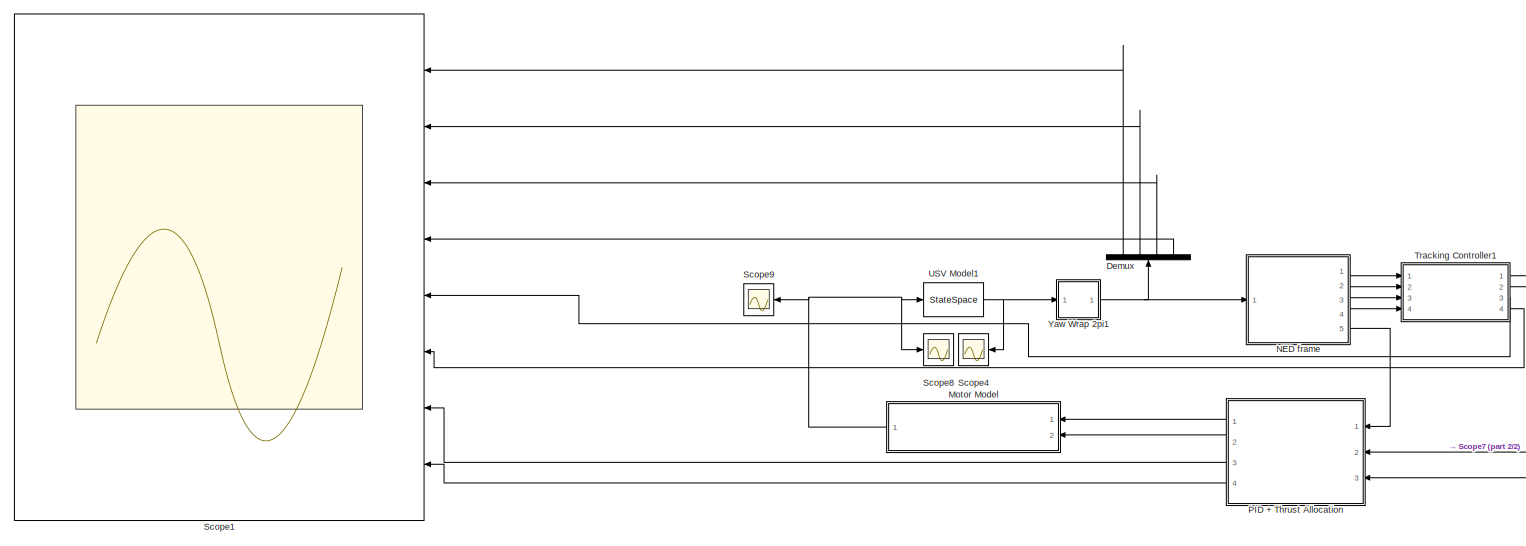
[diagram: root canvas - part 1/2, most of the canvas]
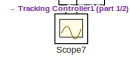
[diagram: root canvas - part 2/2, bottom right region]
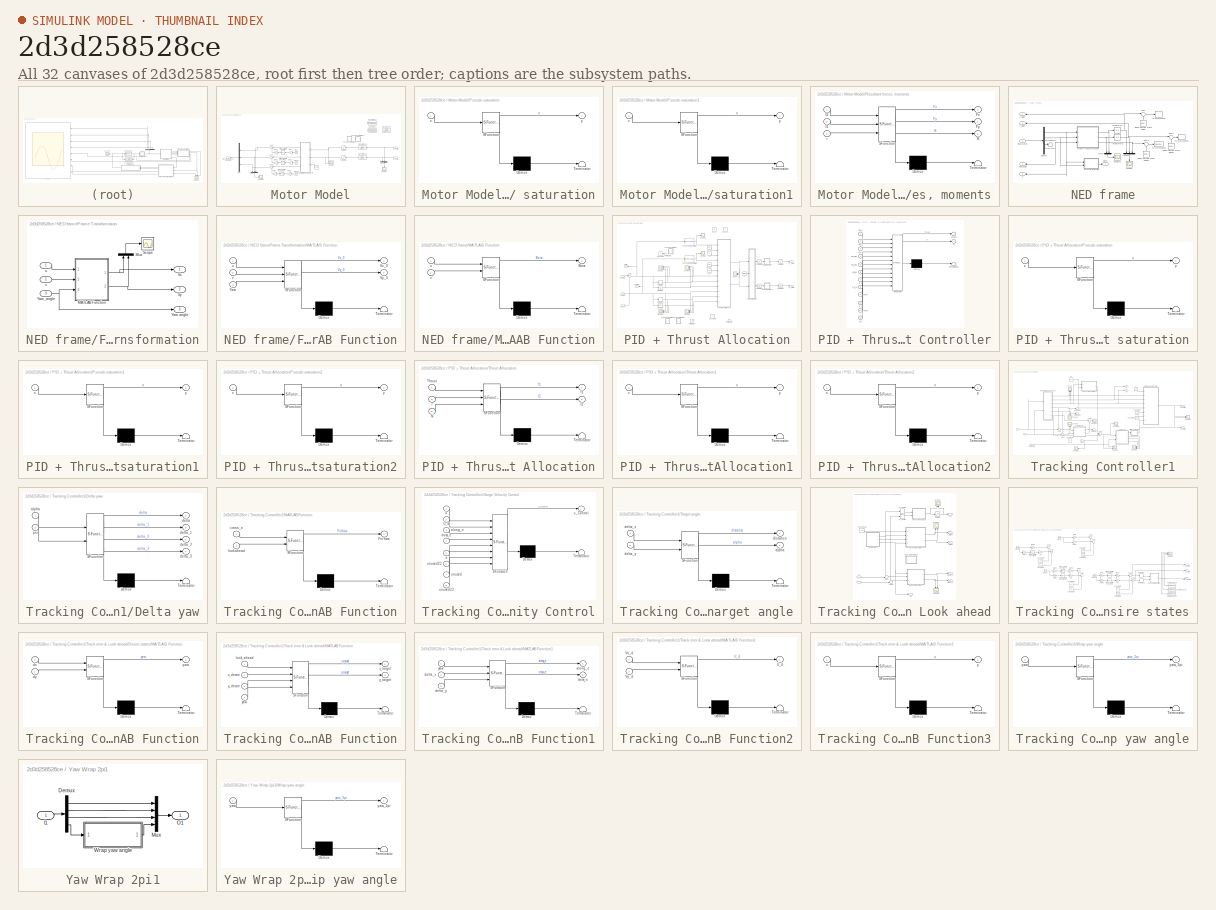
[diagram: thumbnail index - all 32 canvases of the model, root first then tree order]
MODEL slx_2d3d258528ce
KIND model
CONFIG AbsTol = auto
CONFIG EnableMultiTasking = off
CONFIG FixedStep = 1e-2
CONFIG MaxStep = auto
CONFIG MinStep = auto
CONFIG RelTol = 1e-2
CONFIG SampleTimeConstraint = Unconstrained
CONFIG Solver = FixedStepAuto
CONFIG SolverName = FixedStepAuto
CONFIG StartTime = 0.0
CONFIG StopTime = 400
BLOCK [Demux] Demux
  DisplayOption = bar
  Ports = [1, 4]
BLOCK [SubSystem] Motor Model
  Ports = [2, 1]
  RequestExecContextInheritance = off
BLOCK [Clock] Motor Model/Clock
BLOCK [Clock] Motor Model/Clock1
BLOCK [Clock] Motor Model/Clock2
BLOCK [Gain] Motor Model/Gain
  Gain = 0.2
  OutDataTypeStr = Inherit: Inherit via internal rule
  ParamDataTypeStr = Inherit: Inherit via internal rule
  SaturateOnIntegerOverflow = off
BLOCK [Gain] Motor Model/Gain1
  Gain = 0.5
  OutDataTypeStr = Inherit: Inherit via internal rule
  ParamDataTypeStr = Inherit: Inherit via internal rule
  SaturateOnIntegerOverflow = off
BLOCK [Gain] Motor Model/Gain2
  Gain = 0.2
  OutDataTypeStr = Inherit: Inherit via internal rule
  ParamDataTypeStr = Inherit: Inherit via internal rule
  SaturateOnIntegerOverflow = off
BLOCK [Gain] Motor Model/Gain3
  Gain = 0.5
  OutDataTypeStr = Inherit: Inherit via internal rule
  ParamDataTypeStr = Inherit: Inherit via internal rule
  SaturateOnIntegerOverflow = off
BLOCK [Gain] Motor Model/Gain4
  Gain = 0.2
  OutDataTypeStr = Inherit: Inherit via internal rule
  ParamDataTypeStr = Inherit: Inherit via internal rule
  SaturateOnIntegerOverflow = off
BLOCK [Gain] Motor Model/Gain5
  Gain = 0.02
  OutDataTypeStr = Inherit: Inherit via internal rule
  ParamDataTypeStr = Inherit: Inherit via internal rule
  SaturateOnIntegerOverflow = off
BLOCK [Mux] Motor Model/Mux
  DisplayOption = bar
  Inputs = 3
  Ports = [3, 1]
BLOCK [Mux] Motor Model/Mux2
  DisplayOption = bar
  Inputs = 2
  Ports = [2, 1]
BLOCK [Mux] Motor Model/Mux3
  DisplayOption = bar
  Inputs = 3
  Ports = [3, 1]
BLOCK [SubSystem] Motor Model/Pseudo saturation
  ErrorFcn = Stateflow.Translate.translate
  PermitHierarchicalResolution = ExplicitOnly
  Ports = [1, 1]
  RequestExecContextInheritance = off
  SFBlockType = MATLAB Function
  TreatAsAtomicUnit = on
BLOCK [Demux] Motor Model/Pseudo saturation/ Demux 
  Outputs = 1
  Ports = [1, 1]
BLOCK [S-Function] Motor Model/Pseudo saturation/ SFunction 
  EnableBusSupport = on
  FunctionName = sf_sfun
  PortCounts = [1 2]
  Ports = [1, 2]
  SFcnIsStateOwnerBlock = off
  SFunctionDeploymentMode = off
  Tag = Stateflow S-Function USV1_Trajectory_Tracking_PID_Fuzzy4_BachelorThesis 14
BLOCK [Terminator] Motor Model/Pseudo saturation/ Terminator 
BLOCK [Inport] Motor Model/Pseudo saturation/x
  IconDisplay = Port number
BLOCK [Outport] Motor Model/Pseudo saturation/y
  IconDisplay = Port number
BLOCK [SubSystem] Motor Model/Pseudo saturation1
  ErrorFcn = Stateflow.Translate.translate
  PermitHierarchicalResolution = ExplicitOnly
  Ports = [1, 1]
  RequestExecContextInheritance = off
  SFBlockType = MATLAB Function
  TreatAsAtomicUnit = on
BLOCK [Demux] Motor Model/Pseudo saturation1/ Demux 
  Outputs = 1
  Ports = [1, 1]
BLOCK [S-Function] Motor Model/Pseudo saturation1/ SFunction 
  EnableBusSupport = on
  FunctionName = sf_sfun
  PortCounts = [1 2]
  Ports = [1, 2]
  SFcnIsStateOwnerBlock = off
  SFunctionDeploymentMode = off
  Tag = Stateflow S-Function USV1_Trajectory_Tracking_PID_Fuzzy4_BachelorThesis 3
BLOCK [Terminator] Motor Model/Pseudo saturation1/ Terminator 
BLOCK [Inport] Motor Model/Pseudo saturation1/x
  IconDisplay = Port number
BLOCK [Outport] Motor Model/Pseudo saturation1/y
  IconDisplay = Port number
BLOCK [Outport] Motor Model/Resultant Forces, moments
  IconDisplay = Port number
BLOCK [SubSystem] Motor Model/Resultant forces, moments
  ErrorFcn = Stateflow.Translate.translate
  PermitHierarchicalResolution = ExplicitOnly
  Ports = [3, 3]
  RequestExecContextInheritance = off
  SFBlockType = MATLAB Function
  TreatAsAtomicUnit = on
BLOCK [Demux] Motor Model/Resultant forces, moments/ Demux 
  Outputs = 1
  Ports = [1, 1]
BLOCK [S-Function] Motor Model/Resultant forces, moments/ SFunction 
  EnableBusSupport = on
  FunctionName = sf_sfun
  PortCounts = [3 4]
  Ports = [3, 4]
  SFcnIsStateOwnerBlock = off
  SFunctionDeploymentMode = off
  Tag = Stateflow S-Function USV1_Trajectory_Tracking_PID_Fuzzy4_BachelorThesis 41
BLOCK [Terminator] Motor Model/Resultant forces, moments/ Terminator 
BLOCK [Outport] Motor Model/Resultant forces, moments/Fx
  IconDisplay = Port number
BLOCK [Outport] Motor Model/Resultant forces, moments/Fy
  IconDisplay = Port number
  Port = 2
BLOCK [Outport] Motor Model/Resultant forces, moments/N
  IconDisplay = Port number
  Port = 3
BLOCK [Inport] Motor Model/Resultant forces, moments/f1
  IconDisplay = Port number
  Port = 2
BLOCK [Inport] Motor Model/Resultant forces, moments/f2
  IconDisplay = Port number
BLOCK [Inport] Motor Model/Resultant forces, moments/r
  IconDisplay = Port number
  Port = 3
BLOCK [Saturate] Motor Model/Saturation
  InputPortMap = u0
  LowerLimit = 0
  Ports = [1, 1]
  UpperLimit = 150
BLOCK [Saturate] Motor Model/Saturation1
  InputPortMap = u0
  LowerLimit = 0
  Ports = [1, 1]
  UpperLimit = 150
BLOCK [Scope] Motor Model/Scope1
  Floating = off
  NumInputPorts = 2
  Ports = [2]
  ScopeSpecificationString = Simulink.scopes.TimeScopeBlockCfg('CurrentConfiguration', extmgr.ConfigurationSet(extmgr.Configuration('Core','General UI',true,'FigureColor',[1 1 1]),extmgr.Configuration('Core','Source UI',true),extmgr.Configuration('Sources','WiredSimulink',true,'DataLoggingVariableName','ScopeData1'),extmgr.Configuration('Visuals','Time Domain',true,'SerializedDisplays',{struct('MinYLimReal','-5.62037','MaxYLi...<+2387ch>
BLOCK [Scope] Motor Model/Scope2
  Floating = off
  NumInputPorts = 1
  Ports = [1]
  ScopeSpecificationString = Simulink.scopes.TimeScopeBlockCfg('CurrentConfiguration', extmgr.ConfigurationSet(extmgr.Configuration('Core','General UI',true),extmgr.Configuration('Core','Source UI',true),extmgr.Configuration('Sources','WiredSimulink',true,'DataLoggingVariableName','ScopeData1'),extmgr.Configuration('Visuals','Time Domain',true,'SerializedDisplays',{struct('MinYLimReal','-0.28386','MaxYLimReal','2.55478','YLab...<+1593ch>
BLOCK [Scope] Motor Model/Scope3
  Floating = off
  NumInputPorts = 1
  Ports = [1]
  ScopeSpecificationString = Simulink.scopes.TimeScopeBlockCfg('CurrentConfiguration', extmgr.ConfigurationSet(extmgr.Configuration('Core','General UI',true),extmgr.Configuration('Core','Source UI',true),extmgr.Configuration('Sources','WiredSimulink',true,'DataLoggingVariableName','ScopeData2'),extmgr.Configuration('Visuals','Time Domain',true,'SerializedDisplays',{struct('MinYLimReal','-42.3432','MaxYLimReal','86.59551','YLa...<+1572ch>
BLOCK [Sum] Motor Model/Sum
  IconShape = round
  InputSameDT = off
  Inputs = |++
  OutDataTypeStr = Inherit: Inherit via internal rule
  Ports = [2, 1]
  SaturateOnIntegerOverflow = off
BLOCK [Sum] Motor Model/Sum1
  IconShape = round
  InputSameDT = off
  Inputs = |++
  OutDataTypeStr = Inherit: Inherit via internal rule
  Ports = [2, 1]
  SaturateOnIntegerOverflow = off
BLOCK [Sum] Motor Model/Sum2
  IconShape = round
  InputSameDT = off
  Inputs = |++
  OutDataTypeStr = Inherit: Inherit via internal rule
  Ports = [2, 1]
  SaturateOnIntegerOverflow = off
BLOCK [TransferFcn] Motor Model/Transfer Fcn
  Denominator = [1 74.38 5589 42107]
  Numerator = [339.28 -34009 3945100]
BLOCK [TransferFcn] Motor Model/Transfer Fcn1
  Denominator = [1 74.38 5589 42107]
  Numerator = [339.28 -34009 3945100]
BLOCK [TransferFcn] Motor Model/Transfer Fcn2
  Denominator = [0.4 1]
  Numerator = [30]
BLOCK [TransferFcn] Motor Model/Transfer Fcn3
  Denominator = [0.4 1]
  Numerator = [30]
BLOCK [TransferFcn] Motor Model/Transfer Fcn4
  Denominator = [1 8.526]
  Numerator = 800
BLOCK [Trigonometry] Motor Model/Trigonometric Function
  Ports = [1, 1]
BLOCK [Trigonometry] Motor Model/Trigonometric Function1
  Operator = cos
  Ports = [1, 1]
BLOCK [Trigonometry] Motor Model/Trigonometric Function2
  Ports = [1, 1]
BLOCK [Inport] Motor Model/f1_PWM
  IconDisplay = Port number
BLOCK [Inport] Motor Model/f2_PWM
  IconDisplay = Port number
  Port = 2
BLOCK [Constant] Motor Model/r
  Value = 1.83/2
BLOCK [SubSystem] NED frame
  Ports = [1, 5]
  RequestExecContextInheritance = off
BLOCK [Reference] NED frame/Band-Limited White Noise  REF=simulink/Sources/Band-Limited
White Noise
  Ports = [0, 1]
  SourceBlock = simulink/Sources/Band-Limited\nWhite Noise
  SourceProductBaseCode = SL
  SourceProductName = Simulink
  SourceType = Band-Limited White Noise.
BLOCK [Reference] NED frame/Band-Limited White Noise1  REF=simulink/Sources/Band-Limited
White Noise
  Ports = [0, 1]
  SourceBlock = simulink/Sources/Band-Limited\nWhite Noise
  SourceProductBaseCode = SL
  SourceProductName = Simulink
  SourceType = Band-Limited White Noise.
BLOCK [Reference] NED frame/Band-Limited White Noise2  REF=simulink/Sources/Band-Limited
White Noise
  Ports = [0, 1]
  SourceBlock = simulink/Sources/Band-Limited\nWhite Noise
  SourceProductBaseCode = SL
  SourceProductName = Simulink
  SourceType = Band-Limited White Noise.
BLOCK [Outport] NED frame/Beta
  IconDisplay = Port number
  Port = 4
BLOCK [Demux] NED frame/Demux
  DisplayOption = bar
  Ports = [1, 4]
BLOCK [SubSystem] NED frame/Frame Transformation
  Ports = [3, 3]
  RequestExecContextInheritance = off
BLOCK [SubSystem] NED frame/Frame Transformation/MATLAB Function
  ErrorFcn = Stateflow.Translate.translate
  PermitHierarchicalResolution = ExplicitOnly
  Ports = [3, 2]
  RequestExecContextInheritance = off
  SFBlockType = MATLAB Function
  TreatAsAtomicUnit = on
BLOCK [Demux] NED frame/Frame Transformation/MATLAB Function/ Demux 
  Outputs = 1
  Ports = [1, 1]
BLOCK [S-Function] NED frame/Frame Transformation/MATLAB Function/ SFunction 
  EnableBusSupport = on
  FunctionName = sf_sfun
  PortCounts = [3 3]
  Ports = [3, 3]
  SFcnIsStateOwnerBlock = off
  SFunctionDeploymentMode = off
  Tag = Stateflow S-Function USV1_Trajectory_Tracking_PID_Fuzzy4_BachelorThesis 42
BLOCK [Terminator] NED frame/Frame Transformation/MATLAB Function/ Terminator 
BLOCK [Outport] NED frame/Frame Transformation/MATLAB Function/Vx_0
  IconDisplay = Port number
BLOCK [Outport] NED frame/Frame Transformation/MATLAB Function/Vy_0
  IconDisplay = Port number
  Port = 2
BLOCK [Inport] NED frame/Frame Transformation/MATLAB Function/Yaw
  IconDisplay = Port number
  Port = 3
BLOCK [Inport] NED frame/Frame Transformation/MATLAB Function/u
  IconDisplay = Port number
BLOCK [Inport] NED frame/Frame Transformation/MATLAB Function/v
  IconDisplay = Port number
  Port = 2
BLOCK [Mux] NED frame/Frame Transformation/Mux
  DisplayOption = bar
  Inputs = 2
  Ports = [2, 1]
BLOCK [Scope] NED frame/Frame Transformation/Scope
  Floating = off
  NumInputPorts = 1
  Ports = [1]
  ScopeSpecificationString = Simulink.scopes.TimeScopeBlockCfg('CurrentConfiguration', extmgr.ConfigurationSet(extmgr.Configuration('Core','General UI',true),extmgr.Configuration('Core','Source UI',true),extmgr.Configuration('Sources','WiredSimulink',true,'DataLoggingVariableName','ScopeData18'),extmgr.Configuration('Visuals','Time Domain',true,'SerializedDisplays',{struct('MinYLimReal','-1.15615','MaxYLimReal','1.15901','YLa...<+1430ch>
BLOCK [Outport] NED frame/Frame Transformation/Vx
  IconDisplay = Port number
BLOCK [Outport] NED frame/Frame Transformation/Vy
  IconDisplay = Port number
  Port = 2
BLOCK [Outport] NED frame/Frame Transformation/Yaw angle
  IconDisplay = Port number
  Port = 3
BLOCK [Inport] NED frame/Frame Transformation/Yaw_angle
  IconDisplay = Port number
  Port = 3
BLOCK [Inport] NED frame/Frame Transformation/u
  IconDisplay = Port number
BLOCK [Inport] NED frame/Frame Transformation/v
  IconDisplay = Port number
  Port = 2
BLOCK [Integrator] NED frame/Integrator1
  Ports = [1, 1]
BLOCK [Integrator] NED frame/Integrator3
  Ports = [1, 1]
BLOCK [SubSystem] NED frame/MATLAB Function
  ErrorFcn = Stateflow.Translate.translate
  PermitHierarchicalResolution = ExplicitOnly
  Ports = [2, 1]
  RequestExecContextInheritance = off
  SFBlockType = MATLAB Function
  TreatAsAtomicUnit = on
BLOCK [Demux] NED frame/MATLAB Function/ Demux 
  Outputs = 1
  Ports = [1, 1]
BLOCK [S-Function] NED frame/MATLAB Function/ SFunction 
  EnableBusSupport = on
  FunctionName = sf_sfun
  PortCounts = [2 2]
  Ports = [2, 2]
  SFcnIsStateOwnerBlock = off
  SFunctionDeploymentMode = off
  Tag = Stateflow S-Function USV1_Trajectory_Tracking_PID_Fuzzy4_BachelorThesis 57
BLOCK [Terminator] NED frame/MATLAB Function/ Terminator 
BLOCK [Outport] NED frame/MATLAB Function/Beta
  IconDisplay = Port number
BLOCK [Inport] NED frame/MATLAB Function/u
  IconDisplay = Port number
BLOCK [Inport] NED frame/MATLAB Function/v
  IconDisplay = Port number
  Port = 2
BLOCK [Mux] NED frame/Mux3
  DisplayOption = bar
  Inputs = 3
  Ports = [3, 1]
BLOCK [Mux] NED frame/Mux9
  DisplayOption = bar
  Inputs = 2
  Ports = [2, 1]
BLOCK [Inport] NED frame/Real states
  IconDisplay = Port number
BLOCK [Scope] NED frame/Scope12
  Floating = off
  NumInputPorts = 1
  Ports = [1]
  ScopeSpecificationString = Simulink.scopes.TimeScopeBlockCfg('CurrentConfiguration', extmgr.ConfigurationSet(extmgr.Configuration('Core','General UI',true),extmgr.Configuration('Core','Source UI',true),extmgr.Configuration('Sources','WiredSimulink',true,'DataLoggingVariableName','ScopeData19'),extmgr.Configuration('Visuals','Time Domain',true,'SerializedDisplays',{struct('MinYLimReal','-0.91954','MaxYLimReal','0.88785','YLa...<+1561ch>
BLOCK [Scope] NED frame/Scope4
  Floating = off
  NumInputPorts = 1
  Ports = [1]
  ScopeSpecificationString = Simulink.scopes.TimeScopeBlockCfg('CurrentConfiguration', extmgr.ConfigurationSet(extmgr.Configuration('Core','General UI',true),extmgr.Configuration('Core','Source UI',true),extmgr.Configuration('Sources','WiredSimulink',true,'DataLoggingVariableName','ScopeData1'),extmgr.Configuration('Visuals','Time Domain',true,'SerializedDisplays',{struct('MinYLimReal','-251.41233','MaxYLimReal','252.42735','...<+1617ch>
BLOCK [Sum] NED frame/Sum
  IconShape = round
  InputSameDT = off
  Inputs = |++
  OutDataTypeStr = Inherit: Inherit via internal rule
  Ports = [2, 1]
  SaturateOnIntegerOverflow = off
BLOCK [Sum] NED frame/Sum1
  IconShape = round
  InputSameDT = off
  Inputs = |++
  OutDataTypeStr = Inherit: Inherit via internal rule
  Ports = [2, 1]
  SaturateOnIntegerOverflow = off
BLOCK [Sum] NED frame/Sum2
  IconShape = round
  InputSameDT = off
  Inputs = |++
  OutDataTypeStr = Inherit: Inherit via internal rule
  Ports = [2, 1]
  SaturateOnIntegerOverflow = off
BLOCK [Terminator] NED frame/Terminator1
BLOCK [ToWorkspace] NED frame/To Workspace
  FixptAsFi = on
  MaxDataPoints = inf
  Ports = [1]
  SampleTime = -1
  Save2DSignal = 3-D array (concatenate along third dimension)
  VariableName = x_0
BLOCK [ToWorkspace] NED frame/To Workspace1
  FixptAsFi = on
  MaxDataPoints = inf
  Ports = [1]
  SampleTime = -1
  Save2DSignal = 3-D array (concatenate along third dimension)
  VariableName = y_0
BLOCK [ToWorkspace] NED frame/To Workspace2
  FixptAsFi = on
  MaxDataPoints = inf
  Ports = [1]
  SampleTime = -1
  Save2DSignal = 3-D array (concatenate along third dimension)
  VariableName = Yaw
BLOCK [Outport] NED frame/Yaw_angle
  IconDisplay = Port number
  Port = 3
BLOCK [Outport] NED frame/u
  IconDisplay = Port number
  Port = 5
BLOCK [Outport] NED frame/x_NED
  IconDisplay = Port number
BLOCK [Outport] NED frame/y_NED
  IconDisplay = Port number
  Port = 2
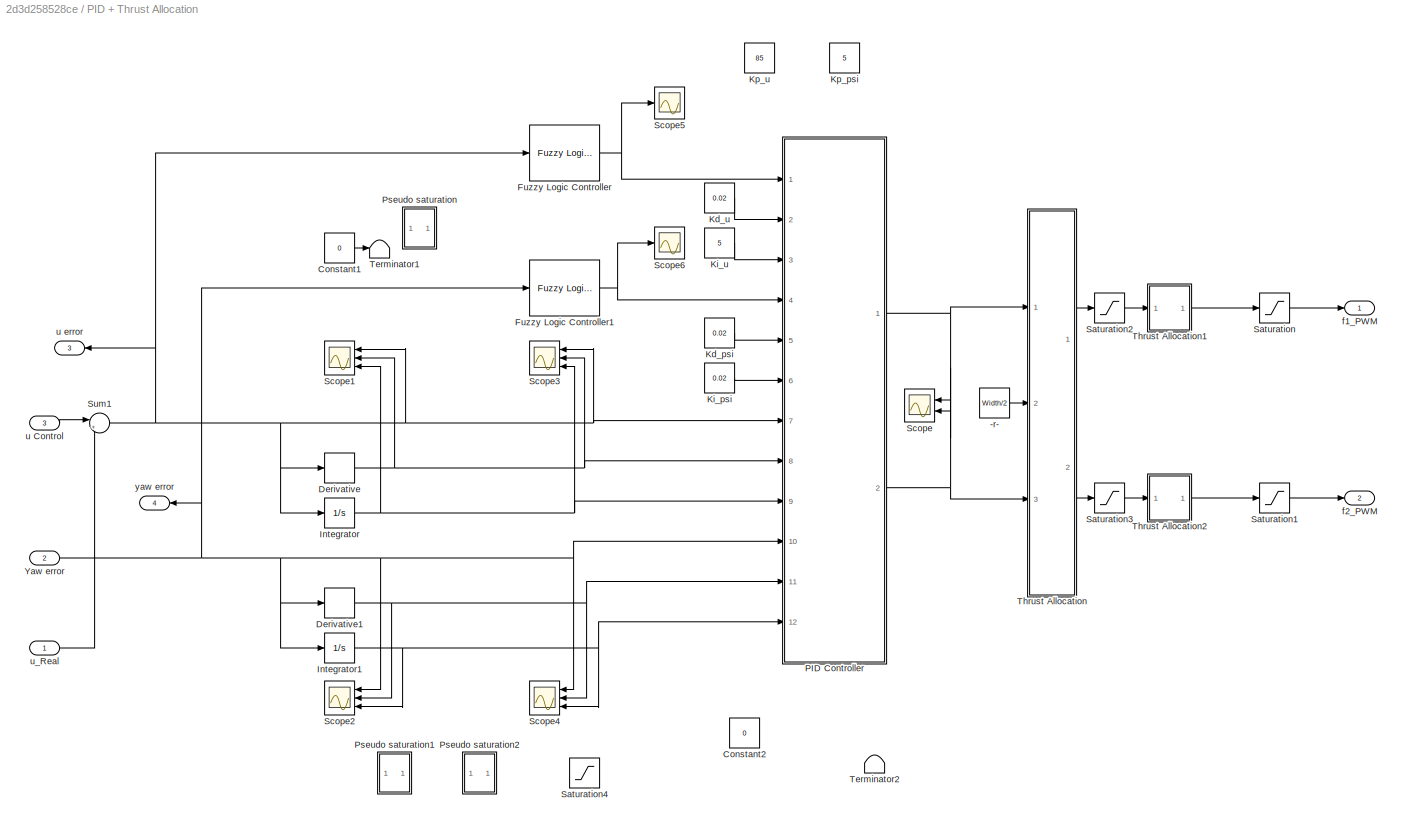
BLOCK [SubSystem] PID + Thrust Allocation
  Ports = [3, 4]
  RequestExecContextInheritance = off
BLOCK [Constant] PID + Thrust Allocation/-r- 
  Value = Width/2
BLOCK [Constant] PID + Thrust Allocation/Constant1
  Value = 0
BLOCK [Constant] PID + Thrust Allocation/Constant2
  Value = 0
BLOCK [Derivative] PID + Thrust Allocation/Derivative
BLOCK [Derivative] PID + Thrust Allocation/Derivative1
BLOCK [Reference] PID + Thrust Allocation/Fuzzy Logic Controller  REF=fuzblock/Fuzzy Logic   (lib defined in mdl_858b3b3e7478)
Controller
  Ports = [1, 1]
  SourceBlock = fuzblock/Fuzzy Logic \nController
  SourceProductBaseCode = FL
  SourceProductName = Fuzzy Logic Toolbox
  SourceType = Fuzzy Inference System
BLOCK [Reference] PID + Thrust Allocation/Fuzzy Logic Controller1  REF=fuzblock/Fuzzy Logic   (lib defined in mdl_858b3b3e7478)
Controller
  Ports = [1, 1]
  SourceBlock = fuzblock/Fuzzy Logic \nController
  SourceProductBaseCode = FL
  SourceProductName = Fuzzy Logic Toolbox
  SourceType = Fuzzy Inference System
BLOCK [Integrator] PID + Thrust Allocation/Integrator
  Ports = [1, 1]
BLOCK [Integrator] PID + Thrust Allocation/Integrator1
  Ports = [1, 1]
BLOCK [Constant] PID + Thrust Allocation/Kd_psi
  Value = 0.02
BLOCK [Constant] PID + Thrust Allocation/Kd_u 
  Value = 0.02
BLOCK [Constant] PID + Thrust Allocation/Ki_psi
  Value = 0.02
BLOCK [Constant] PID + Thrust Allocation/Ki_u
  Value = 5
BLOCK [Constant] PID + Thrust Allocation/Kp_psi
  Value = 5
BLOCK [Constant] PID + Thrust Allocation/Kp_u
  Value = 85
BLOCK [SubSystem] PID + Thrust Allocation/PID Controller
  ErrorFcn = Stateflow.Translate.translate
  PermitHierarchicalResolution = ExplicitOnly
  Ports = [12, 2]
  RequestExecContextInheritance = off
  SFBlockType = MATLAB Function
  TreatAsAtomicUnit = on
BLOCK [Demux] PID + Thrust Allocation/PID Controller/ Demux 
  Outputs = 1
  Ports = [1, 1]
BLOCK [S-Function] PID + Thrust Allocation/PID Controller/ SFunction 
  EnableBusSupport = on
  FunctionName = sf_sfun
  PortCounts = [12 3]
  Ports = [12, 3]
  SFcnIsStateOwnerBlock = off
  SFunctionDeploymentMode = off
  Tag = Stateflow S-Function USV1_Trajectory_Tracking_PID_Fuzzy4_BachelorThesis 43
BLOCK [Terminator] PID + Thrust Allocation/PID Controller/ Terminator 
BLOCK [Inport] PID + Thrust Allocation/PID Controller/Kd_psi
  IconDisplay = Port number
  Port = 5
BLOCK [Inport] PID + Thrust Allocation/PID Controller/Kd_u
  IconDisplay = Port number
  Port = 2
BLOCK [Inport] PID + Thrust Allocation/PID Controller/Ki_psi
  IconDisplay = Port number
  Port = 6
BLOCK [Inport] PID + Thrust Allocation/PID Controller/Ki_u
  IconDisplay = Port number
  Port = 3
BLOCK [Inport] PID + Thrust Allocation/PID Controller/Kp_psi
  IconDisplay = Port number
  Port = 4
BLOCK [Inport] PID + Thrust Allocation/PID Controller/Kp_u
  IconDisplay = Port number
BLOCK [Outport] PID + Thrust Allocation/PID Controller/N
  IconDisplay = Port number
  Port = 2
BLOCK [Outport] PID + Thrust Allocation/PID Controller/Thrust
  IconDisplay = Port number
BLOCK [Inport] PID + Thrust Allocation/PID Controller/d_e_r
  IconDisplay = Port number
  Port = 11
BLOCK [Inport] PID + Thrust Allocation/PID Controller/d_e_u
  IconDisplay = Port number
  Port = 8
BLOCK [Inport] PID + Thrust Allocation/PID Controller/e_r
  IconDisplay = Port number
  Port = 10
BLOCK [Inport] PID + Thrust Allocation/PID Controller/e_u
  IconDisplay = Port number
  Port = 7
BLOCK [Inport] PID + Thrust Allocation/PID Controller/i_e_r
  IconDisplay = Port number
  Port = 12
BLOCK [Inport] PID + Thrust Allocation/PID Controller/i_e_u
  IconDisplay = Port number
  Port = 9
BLOCK [SubSystem] PID + Thrust Allocation/Pseudo saturation
  ErrorFcn = Stateflow.Translate.translate
  PermitHierarchicalResolution = ExplicitOnly
  Ports = [1, 1]
  RequestExecContextInheritance = off
  SFBlockType = MATLAB Function
  TreatAsAtomicUnit = on
BLOCK [Demux] PID + Thrust Allocation/Pseudo saturation/ Demux 
  Outputs = 1
  Ports = [1, 1]
BLOCK [S-Function] PID + Thrust Allocation/Pseudo saturation/ SFunction 
  EnableBusSupport = on
  FunctionName = sf_sfun
  PortCounts = [1 2]
  Ports = [1, 2]
  SFcnIsStateOwnerBlock = off
  SFunctionDeploymentMode = off
  Tag = Stateflow S-Function USV1_Trajectory_Tracking_PID_Fuzzy4_BachelorThesis 44
BLOCK [Terminator] PID + Thrust Allocation/Pseudo saturation/ Terminator 
BLOCK [Inport] PID + Thrust Allocation/Pseudo saturation/x
  IconDisplay = Port number
BLOCK [Outport] PID + Thrust Allocation/Pseudo saturation/y
  IconDisplay = Port number
BLOCK [SubSystem] PID + Thrust Allocation/Pseudo saturation1
  ErrorFcn = Stateflow.Translate.translate
  PermitHierarchicalResolution = ExplicitOnly
  Ports = [1, 1]
  RequestExecContextInheritance = off
  SFBlockType = MATLAB Function
  TreatAsAtomicUnit = on
BLOCK [Demux] PID + Thrust Allocation/Pseudo saturation1/ Demux 
  Outputs = 1
  Ports = [1, 1]
BLOCK [S-Function] PID + Thrust Allocation/Pseudo saturation1/ SFunction 
  EnableBusSupport = on
  FunctionName = sf_sfun
  PortCounts = [1 2]
  Ports = [1, 2]
  SFcnIsStateOwnerBlock = off
  SFunctionDeploymentMode = off
  Tag = Stateflow S-Function USV1_Trajectory_Tracking_PID_Fuzzy4_BachelorThesis 45
BLOCK [Terminator] PID + Thrust Allocation/Pseudo saturation1/ Terminator 
BLOCK [Inport] PID + Thrust Allocation/Pseudo saturation1/x
  IconDisplay = Port number
BLOCK [Outport] PID + Thrust Allocation/Pseudo saturation1/y
  IconDisplay = Port number
BLOCK [SubSystem] PID + Thrust Allocation/Pseudo saturation2
  ErrorFcn = Stateflow.Translate.translate
  PermitHierarchicalResolution = ExplicitOnly
  Ports = [1, 1]
  RequestExecContextInheritance = off
  SFBlockType = MATLAB Function
  TreatAsAtomicUnit = on
BLOCK [Demux] PID + Thrust Allocation/Pseudo saturation2/ Demux 
  Outputs = 1
  Ports = [1, 1]
BLOCK [S-Function] PID + Thrust Allocation/Pseudo saturation2/ SFunction 
  EnableBusSupport = on
  FunctionName = sf_sfun
  PortCounts = [1 2]
  Ports = [1, 2]
  SFcnIsStateOwnerBlock = off
  SFunctionDeploymentMode = off
  Tag = Stateflow S-Function USV1_Trajectory_Tracking_PID_Fuzzy4_BachelorThesis 46
BLOCK [Terminator] PID + Thrust Allocation/Pseudo saturation2/ Terminator 
BLOCK [Inport] PID + Thrust Allocation/Pseudo saturation2/x
  IconDisplay = Port number
BLOCK [Outport] PID + Thrust Allocation/Pseudo saturation2/y
  IconDisplay = Port number
BLOCK [Saturate] PID + Thrust Allocation/Saturation
  InputPortMap = u0
  LinearizeAsGain = off
  LowerLimit = 0
  Ports = [1, 1]
  UpperLimit = 5
BLOCK [Saturate] PID + Thrust Allocation/Saturation1
  InputPortMap = u0
  LinearizeAsGain = off
  LowerLimit = 0
  Ports = [1, 1]
  UpperLimit = 5
BLOCK [Saturate] PID + Thrust Allocation/Saturation2
  InputPortMap = u0
  LinearizeAsGain = off
  LowerLimit = 0
  Ports = [1, 1]
  UpperLimit = inf
BLOCK [Saturate] PID + Thrust Allocation/Saturation3
  InputPortMap = u0
  LinearizeAsGain = off
  LowerLimit = 0
  Ports = [1, 1]
  UpperLimit = inf
BLOCK [Saturate] PID + Thrust Allocation/Saturation4
  InputPortMap = u0
  LowerLimit = -5
  Ports = [1, 1]
  UpperLimit = 5
BLOCK [Scope] PID + Thrust Allocation/Scope
  Floating = off
  NumInputPorts = 2
  Ports = [2]
  ScopeSpecificationString = Simulink.scopes.TimeScopeBlockCfg('CurrentConfiguration', extmgr.ConfigurationSet(extmgr.Configuration('Core','General UI',true),extmgr.Configuration('Core','Source UI',true),extmgr.Configuration('Sources','WiredSimulink',true,'DataLoggingVariableName','ScopeData5'),extmgr.Configuration('Visuals','Time Domain',true,'SerializedDisplays',{struct('MinYLimReal','52.2901','MaxYLimReal','58.67482','YLab...<+2045ch>
BLOCK [Scope] PID + Thrust Allocation/Scope1
  Floating = off
  NumInputPorts = 3
  Ports = [3]
  ScopeSpecificationString = Simulink.scopes.TimeScopeBlockCfg('CurrentConfiguration', extmgr.ConfigurationSet(extmgr.Configuration('Core','General UI',true),extmgr.Configuration('Core','Source UI',true),extmgr.Configuration('Sources','WiredSimulink',true,'DataLoggingVariableName','ScopeData6'),extmgr.Configuration('Visuals','Time Domain',true,'SerializedDisplays',{struct('MinYLimReal','-0.12782','MaxYLimReal','0.68508','YLab...<+2722ch>
BLOCK [Scope] PID + Thrust Allocation/Scope2
  Floating = off
  NumInputPorts = 3
  Ports = [3]
  ScopeSpecificationString = Simulink.scopes.TimeScopeBlockCfg('CurrentConfiguration', extmgr.ConfigurationSet(extmgr.Configuration('Core','General UI',true),extmgr.Configuration('Core','Source UI',true),extmgr.Configuration('Sources','WiredSimulink',true,'DataLoggingVariableName','ScopeData7'),extmgr.Configuration('Visuals','Time Domain',true,'SerializedDisplays',{struct('MinYLimReal','-0.65234','MaxYLimReal','0.49144','YLab...<+2732ch>
BLOCK [Scope] PID + Thrust Allocation/Scope3
  Floating = off
  NumInputPorts = 3
  Ports = [3]
  ScopeSpecificationString = Simulink.scopes.TimeScopeBlockCfg('CurrentConfiguration', extmgr.ConfigurationSet(extmgr.Configuration('Core','General UI',true),extmgr.Configuration('Core','Source UI',true),extmgr.Configuration('Sources','WiredSimulink',true,'DataLoggingVariableName','ScopeData8'),extmgr.Configuration('Visuals','Time Domain',true,'SerializedDisplays',{struct('MinYLimReal','-0.08843','MaxYLimReal','0.75518','YLab...<+2758ch>
BLOCK [Scope] PID + Thrust Allocation/Scope4
  Floating = off
  NumInputPorts = 3
  Ports = [3]
  ScopeSpecificationString = Simulink.scopes.TimeScopeBlockCfg('CurrentConfiguration', extmgr.ConfigurationSet(extmgr.Configuration('Core','General UI',true),extmgr.Configuration('Core','Source UI',true),extmgr.Configuration('Sources','WiredSimulink',true,'DataLoggingVariableName','ScopeData9'),extmgr.Configuration('Visuals','Time Domain',true,'SerializedDisplays',{struct('MinYLimReal','-0.69143','MaxYLimReal','0.38151','YLab...<+2759ch>
BLOCK [Scope] PID + Thrust Allocation/Scope5
  Floating = off
  NumInputPorts = 1
  Ports = [1]
  ScopeSpecificationString = Simulink.scopes.TimeScopeBlockCfg('CurrentConfiguration', extmgr.ConfigurationSet(extmgr.Configuration('Core','General UI',true),extmgr.Configuration('Core','Source UI',true),extmgr.Configuration('Sources','WiredSimulink',true,'DataLoggingVariableName','ScopeData6'),extmgr.Configuration('Visuals','Time Domain',true,'SerializedDisplays',{struct('MinYLimReal','46.97399','MaxYLimReal','105.89176','YL...<+1411ch>
BLOCK [Scope] PID + Thrust Allocation/Scope6
  Floating = off
  NumInputPorts = 1
  Ports = [1]
  ScopeSpecificationString = Simulink.scopes.TimeScopeBlockCfg('CurrentConfiguration', extmgr.ConfigurationSet(extmgr.Configuration('Core','General UI',true),extmgr.Configuration('Core','Source UI',true),extmgr.Configuration('Sources','WiredSimulink',true,'DataLoggingVariableName','ScopeData7'),extmgr.Configuration('Visuals','Time Domain',true,'SerializedDisplays',{struct('MinYLimReal','2.73405','MaxYLimReal','5.25174','YLabe...<+1452ch>
BLOCK [Sum] PID + Thrust Allocation/Sum1
  IconShape = round
  InputSameDT = off
  Inputs = |+-
  OutDataTypeStr = Inherit: Inherit via internal rule
  Ports = [2, 1]
  SaturateOnIntegerOverflow = off
BLOCK [Terminator] PID + Thrust Allocation/Terminator1
BLOCK [Terminator] PID + Thrust Allocation/Terminator2
BLOCK [SubSystem] PID + Thrust Allocation/Thrust Allocation
  ErrorFcn = Stateflow.Translate.translate
  PermitHierarchicalResolution = ExplicitOnly
  Ports = [3, 2]
  RequestExecContextInheritance = off
  SFBlockType = MATLAB Function
  TreatAsAtomicUnit = on
BLOCK [Demux] PID + Thrust Allocation/Thrust Allocation/ Demux 
  Outputs = 1
  Ports = [1, 1]
BLOCK [S-Function] PID + Thrust Allocation/Thrust Allocation/ SFunction 
  EnableBusSupport = on
  FunctionName = sf_sfun
  PortCounts = [3 3]
  Ports = [3, 3]
  SFcnIsStateOwnerBlock = off
  SFunctionDeploymentMode = off
  Tag = Stateflow S-Function USV1_Trajectory_Tracking_PID_Fuzzy4_BachelorThesis 47
BLOCK [Terminator] PID + Thrust Allocation/Thrust Allocation/ Terminator 
BLOCK [Inport] PID + Thrust Allocation/Thrust Allocation/N
  IconDisplay = Port number
  Port = 3
BLOCK [Inport] PID + Thrust Allocation/Thrust Allocation/Thrust
  IconDisplay = Port number
BLOCK [Outport] PID + Thrust Allocation/Thrust Allocation/f1
  IconDisplay = Port number
BLOCK [Outport] PID + Thrust Allocation/Thrust Allocation/f2
  IconDisplay = Port number
  Port = 2
BLOCK [Inport] PID + Thrust Allocation/Thrust Allocation/r
  IconDisplay = Port number
  Port = 2
BLOCK [SubSystem] PID + Thrust Allocation/Thrust Allocation1
  ErrorFcn = Stateflow.Translate.translate
  PermitHierarchicalResolution = ExplicitOnly
  Ports = [1, 1]
  RequestExecContextInheritance = off
  SFBlockType = MATLAB Function
  TreatAsAtomicUnit = on
BLOCK [Demux] PID + Thrust Allocation/Thrust Allocation1/ Demux 
  Outputs = 1
  Ports = [1, 1]
BLOCK [S-Function] PID + Thrust Allocation/Thrust Allocation1/ SFunction 
  EnableBusSupport = on
  FunctionName = sf_sfun
  PortCounts = [1 2]
  Ports = [1, 2]
  SFcnIsStateOwnerBlock = off
  SFunctionDeploymentMode = off
  Tag = Stateflow S-Function USV1_Trajectory_Tracking_PID_Fuzzy4_BachelorThesis 1
BLOCK [Terminator] PID + Thrust Allocation/Thrust Allocation1/ Terminator 
BLOCK [Inport] PID + Thrust Allocation/Thrust Allocation1/x
  IconDisplay = Port number
BLOCK [Outport] PID + Thrust Allocation/Thrust Allocation1/y
  IconDisplay = Port number
BLOCK [SubSystem] PID + Thrust Allocation/Thrust Allocation2
  ErrorFcn = Stateflow.Translate.translate
  PermitHierarchicalResolution = ExplicitOnly
  Ports = [1, 1]
  RequestExecContextInheritance = off
  SFBlockType = MATLAB Function
  TreatAsAtomicUnit = on
BLOCK [Demux] PID + Thrust Allocation/Thrust Allocation2/ Demux 
  Outputs = 1
  Ports = [1, 1]
BLOCK [S-Function] PID + Thrust Allocation/Thrust Allocation2/ SFunction 
  EnableBusSupport = on
  FunctionName = sf_sfun
  PortCounts = [1 2]
  Ports = [1, 2]
  SFcnIsStateOwnerBlock = off
  SFunctionDeploymentMode = off
  Tag = Stateflow S-Function USV1_Trajectory_Tracking_PID_Fuzzy4_BachelorThesis 2
BLOCK [Terminator] PID + Thrust Allocation/Thrust Allocation2/ Terminator 
BLOCK [Inport] PID + Thrust Allocation/Thrust Allocation2/x
  IconDisplay = Port number
BLOCK [Outport] PID + Thrust Allocation/Thrust Allocation2/y
  IconDisplay = Port number
BLOCK [Inport] PID + Thrust Allocation/Yaw error
  IconDisplay = Port number
  Port = 2
BLOCK [Outport] PID + Thrust Allocation/f1_PWM
  IconDisplay = Port number
BLOCK [Outport] PID + Thrust Allocation/f2_PWM
  IconDisplay = Port number
  Port = 2
BLOCK [Inport] PID + Thrust Allocation/u Control
  IconDisplay = Port number
  Port = 3
BLOCK [Outport] PID + Thrust Allocation/u error
  IconDisplay = Port number
  Port = 3
BLOCK [Inport] PID + Thrust Allocation/u_Real
  IconDisplay = Port number
BLOCK [Outport] PID + Thrust Allocation/yaw error
  IconDisplay = Port number
  Port = 4
BLOCK [Scope] Scope1
  Floating = off
  NumInputPorts = 8
  Ports = [8]
  ScopeSpecificationString = Simulink.scopes.TimeScopeBlockCfg('CurrentConfiguration', extmgr.ConfigurationSet(extmgr.Configuration('Core','General UI',true,'FigureColor',[1 1 1]),extmgr.Configuration('Core','Source UI',true),extmgr.Configuration('Sources','WiredSimulink',true,'DataLoggingVariableName','ScopeData1'),extmgr.Configuration('Visuals','Time Domain',true,'SerializedDisplays',{struct('MinYLimReal','-0.09352','MaxYLi...<+8221ch>
BLOCK [Scope] Scope4
  Floating = off
  NumInputPorts = 1
  Ports = [1]
  ScopeSpecificationString = Simulink.scopes.TimeScopeBlockCfg('CurrentConfiguration', extmgr.ConfigurationSet(extmgr.Configuration('Core','General UI',true),extmgr.Configuration('Core','Source UI',true),extmgr.Configuration('Sources','WiredSimulink',true,'DataLoggingVariableName','ScopeData1'),extmgr.Configuration('Visuals','Time Domain',true,'SerializedDisplays',{struct('MinYLimReal','-3.32438','MaxYLimReal','3.73043','YLab...<+1637ch>
BLOCK [Scope] Scope7
  Floating = off
  NumInputPorts = 2
  Ports = [2]
  ScopeSpecificationString = Simulink.scopes.TimeScopeBlockCfg('CurrentConfiguration', extmgr.ConfigurationSet(extmgr.Configuration('Core','General UI',true),extmgr.Configuration('Core','Source UI',true),extmgr.Configuration('Sources','WiredSimulink',true,'DataLoggingVariableName','ScopeData3'),extmgr.Configuration('Visuals','Time Domain',true,'SerializedDisplays',{struct('MinYLimReal','-0.07576','MaxYLimReal','0.68187','YLab...<+2294ch>
BLOCK [Scope] Scope8
  Floating = off
  NumInputPorts = 1
  Ports = [1]
  ScopeSpecificationString = Simulink.scopes.TimeScopeBlockCfg('CurrentConfiguration', extmgr.ConfigurationSet(extmgr.Configuration('Core','General UI',true),extmgr.Configuration('Core','Source UI',true),extmgr.Configuration('Sources','WiredSimulink',true,'DataLoggingVariableName','ScopeData4'),extmgr.Configuration('Visuals','Time Domain',true,'SerializedDisplays',{struct('MinYLimReal','-128.58776','MaxYLimReal','238.7008','Y...<+1626ch>
BLOCK [Scope] Scope9
  Floating = off
  NumInputPorts = 1
  Ports = [1]
  ScopeSpecificationString = Simulink.scopes.TimeScopeBlockCfg('CurrentConfiguration', extmgr.ConfigurationSet(extmgr.Configuration('Core','General UI',true),extmgr.Configuration('Core','Source UI',true),extmgr.Configuration('Sources','WiredSimulink',true,'DataLoggingVariableName','ScopeData5'),extmgr.Configuration('Visuals','Time Domain',true,'SerializedDisplays',{struct('MinYLimReal','-10.90622','MaxYLimReal','81.12975','YL...<+1629ch>
BLOCK [SubSystem] Tracking Controller1
  Ports = [4, 4]
  RequestExecContextInheritance = off
BLOCK [Inport] Tracking Controller1/Beta
  IconDisplay = Port number
  Port = 4
BLOCK [Constant] Tracking Controller1/Constant2
  Value = 150
BLOCK [Constant] Tracking Controller1/Constant3
  Value = 50
BLOCK [Constant] Tracking Controller1/Constant4
  Value = 0
BLOCK [SubSystem] Tracking Controller1/Delta yaw
  ErrorFcn = Stateflow.Translate.translate
  PermitHierarchicalResolution = ExplicitOnly
  Ports = [2, 4]
  RequestExecContextInheritance = off
  SFBlockType = MATLAB Function
  TreatAsAtomicUnit = on
BLOCK [Demux] Tracking Controller1/Delta yaw/ Demux 
  Outputs = 1
  Ports = [1, 1]
BLOCK [S-Function] Tracking Controller1/Delta yaw/ SFunction 
  EnableBusSupport = on
  FunctionName = sf_sfun
  PortCounts = [2 5]
  Ports = [2, 5]
  SFcnIsStateOwnerBlock = off
  SFunctionDeploymentMode = off
  Tag = Stateflow S-Function USV1_Trajectory_Tracking_PID_Fuzzy4_BachelorThesis 48
BLOCK [Terminator] Tracking Controller1/Delta yaw/ Terminator 
BLOCK [Inport] Tracking Controller1/Delta yaw/alpha
  IconDisplay = Port number
BLOCK [Outport] Tracking Controller1/Delta yaw/delta
  IconDisplay = Port number
BLOCK [Outport] Tracking Controller1/Delta yaw/delta_1
  IconDisplay = Port number
  Port = 2
BLOCK [Outport] Tracking Controller1/Delta yaw/delta_2
  IconDisplay = Port number
  Port = 3
BLOCK [Outport] Tracking Controller1/Delta yaw/delta_3
  IconDisplay = Port number
  Port = 4
BLOCK [Inport] Tracking Controller1/Delta yaw/psi
  IconDisplay = Port number
  Port = 2
BLOCK [SubSystem] Tracking Controller1/MATLAB Function
  ErrorFcn = Stateflow.Translate.translate
  PermitHierarchicalResolution = ExplicitOnly
  Ports = [2, 1]
  RequestExecContextInheritance = off
  SFBlockType = MATLAB Function
  TreatAsAtomicUnit = on
BLOCK [Demux] Tracking Controller1/MATLAB Function/ Demux 
  Outputs = 1
  Ports = [1, 1]
BLOCK [S-Function] Tracking Controller1/MATLAB Function/ SFunction 
  EnableBusSupport = on
  FunctionName = sf_sfun
  PortCounts = [2 2]
  Ports = [2, 2]
  SFcnIsStateOwnerBlock = off
  SFunctionDeploymentMode = off
  Tag = Stateflow S-Function USV1_Trajectory_Tracking_PID_Fuzzy4_BachelorThesis 5
BLOCK [Terminator] Tracking Controller1/MATLAB Function/ Terminator 
BLOCK [Outport] Tracking Controller1/MATLAB Function/FixYaw
  IconDisplay = Port number
BLOCK [Inport] Tracking Controller1/MATLAB Function/cross_e
  IconDisplay = Port number
BLOCK [Inport] Tracking Controller1/MATLAB Function/lookahead
  IconDisplay = Port number
  Port = 2
BLOCK [Scope] Tracking Controller1/Scope
  Floating = off
  NumInputPorts = 3
  Ports = [3]
  ScopeSpecificationString = Simulink.scopes.TimeScopeBlockCfg('CurrentConfiguration', extmgr.ConfigurationSet(extmgr.Configuration('Core','General UI',true),extmgr.Configuration('Core','Source UI',true),extmgr.Configuration('Sources','WiredSimulink',true,'DataLoggingVariableName','ScopeData3'),extmgr.Configuration('Visuals','Time Domain',true,'SerializedDisplays',{struct('MinYLimReal','-0.08437','MaxYLimReal','0.75937','YLab...<+2789ch>
BLOCK [Scope] Tracking Controller1/Scope1
  Floating = off
  NumInputPorts = 3
  Ports = [3]
  ScopeSpecificationString = Simulink.scopes.TimeScopeBlockCfg('CurrentConfiguration', extmgr.ConfigurationSet(extmgr.Configuration('Core','General UI',true),extmgr.Configuration('Core','Source UI',true),extmgr.Configuration('Sources','WiredSimulink',true,'DataLoggingVariableName','ScopeData1'),extmgr.Configuration('Visuals','Time Domain',true,'SerializedDisplays',{struct('MinYLimReal','1.66369','MaxYLimReal','13.71261','YLab...<+2704ch>
BLOCK [Scope] Tracking Controller1/Scope2
  Floating = off
  NumInputPorts = 2
  Ports = [2]
  ScopeSpecificationString = Simulink.scopes.TimeScopeBlockCfg('CurrentConfiguration', extmgr.ConfigurationSet(extmgr.Configuration('Core','General UI',true),extmgr.Configuration('Core','Source UI',true),extmgr.Configuration('Sources','WiredSimulink',true,'DataLoggingVariableName','ScopeData8'),extmgr.Configuration('Visuals','Time Domain',true,'SerializedDisplays',{struct('MinYLimReal','-183.74547','MaxYLimReal','54.36114','Y...<+1989ch>
BLOCK [Scope] Tracking Controller1/Scope3
  Floating = off
  NumInputPorts = 2
  Ports = [2]
  ScopeSpecificationString = Simulink.scopes.TimeScopeBlockCfg('CurrentConfiguration', extmgr.ConfigurationSet(extmgr.Configuration('Core','General UI',true),extmgr.Configuration('Core','Source UI',true),extmgr.Configuration('Sources','WiredSimulink',true,'DataLoggingVariableName','ScopeData2'),extmgr.Configuration('Visuals','Time Domain',true,'SerializedDisplays',{struct('MinYLimReal','-3.92532','MaxYLimReal','3.9259','YLabe...<+1964ch>
BLOCK [Scope] Tracking Controller1/Scope4
  Floating = off
  NumInputPorts = 2
  Ports = [2]
  ScopeSpecificationString = Simulink.scopes.TimeScopeBlockCfg('CurrentConfiguration', extmgr.ConfigurationSet(extmgr.Configuration('Core','General UI',true),extmgr.Configuration('Core','Source UI',true),extmgr.Configuration('Sources','WiredSimulink',true,'DataLoggingVariableName','ScopeData2'),extmgr.Configuration('Visuals','Time Domain',true,'SerializedDisplays',{struct('MinYLimReal','-95.80777','MaxYLimReal','105.80783','Y...<+2049ch>
BLOCK [Scope] Tracking Controller1/Scope5
  Floating = off
  NumInputPorts = 1
  Ports = [1]
  ScopeSpecificationString = Simulink.scopes.TimeScopeBlockCfg('CurrentConfiguration', extmgr.ConfigurationSet(extmgr.Configuration('Core','General UI',true),extmgr.Configuration('Core','Source UI',true),extmgr.Configuration('Sources','WiredSimulink',true,'DataLoggingVariableName','ScopeData9'),extmgr.Configuration('Visuals','Time Domain',true,'SerializedDisplays',{struct('MinYLimReal','-3.93105','MaxYLimReal','3.92271','YLab...<+1411ch>
BLOCK [Scope] Tracking Controller1/Scope6
  Floating = off
  NumInputPorts = 1
  Ports = [1]
  ScopeSpecificationString = Simulink.scopes.TimeScopeBlockCfg('CurrentConfiguration', extmgr.ConfigurationSet(extmgr.Configuration('Core','General UI',true),extmgr.Configuration('Core','Source UI',true),extmgr.Configuration('Sources','WiredSimulink',true,'DataLoggingVariableName','ScopeData10'),extmgr.Configuration('Visuals','Time Domain',true,'SerializedDisplays',{struct('MinYLimReal','-0.03533','MaxYLimReal','0.01731','YLa...<+1364ch>
BLOCK [Scope] Tracking Controller1/Scope7
  Floating = off
  NumInputPorts = 1
  Ports = [1]
  ScopeSpecificationString = Simulink.scopes.TimeScopeBlockCfg('CurrentConfiguration', extmgr.ConfigurationSet(extmgr.Configuration('Core','General UI',true),extmgr.Configuration('Core','Source UI',true),extmgr.Configuration('Sources','WiredSimulink',true,'DataLoggingVariableName','ScopeData1'),extmgr.Configuration('Visuals','Time Domain',true,'SerializedDisplays',{struct('MinYLimReal','-0.13677','MaxYLimReal','0.13309','YLab...<+1409ch>
BLOCK [Scope] Tracking Controller1/Scope8
  Floating = off
  NumInputPorts = 2
  Ports = [2]
  ScopeSpecificationString = Simulink.scopes.TimeScopeBlockCfg('CurrentConfiguration', extmgr.ConfigurationSet(extmgr.Configuration('Core','General UI',true),extmgr.Configuration('Core','Source UI',true),extmgr.Configuration('Sources','WiredSimulink',true,'DataLoggingVariableName','ScopeData12'),extmgr.Configuration('Visuals','Time Domain',true,'SerializedDisplays',{struct('MinYLimReal','0.45763','MaxYLimReal','2.83438','YLab...<+2052ch>
BLOCK [Sum] Tracking Controller1/Sum
  IconShape = round
  InputSameDT = off
  Inputs = +-|
  OutDataTypeStr = Inherit: Inherit via internal rule
  Ports = [2, 1]
  SaturateOnIntegerOverflow = off
BLOCK [Sum] Tracking Controller1/Sum1
  IconShape = round
  InputSameDT = off
  Inputs = +-|
  OutDataTypeStr = Inherit: Inherit via internal rule
  Ports = [2, 1]
  SaturateOnIntegerOverflow = off
BLOCK [Sum] Tracking Controller1/Sum2
  IconShape = round
  InputSameDT = off
  Inputs = |+-+
  OutDataTypeStr = Inherit: Inherit via internal rule
  Ports = [3, 1]
  SaturateOnIntegerOverflow = off
BLOCK [Sum] Tracking Controller1/Sum3
  IconShape = round
  InputSameDT = off
  Inputs = |+-
  OutDataTypeStr = Inherit: Inherit via internal rule
  Ports = [2, 1]
  SaturateOnIntegerOverflow = off
BLOCK [SubSystem] Tracking Controller1/Surge Velocity Control
  ErrorFcn = Stateflow.Translate.translate
  PermitHierarchicalResolution = ExplicitOnly
  Ports = [8, 1]
  RequestExecContextInheritance = off
  SFBlockType = MATLAB Function
  TreatAsAtomicUnit = on
BLOCK [Demux] Tracking Controller1/Surge Velocity Control/ Demux 
  Outputs = 1
  Ports = [1, 1]
BLOCK [S-Function] Tracking Controller1/Surge Velocity Control/ SFunction 
  EnableBusSupport = on
  FunctionName = sf_sfun
  PortCounts = [8 2]
  Ports = [8, 2]
  SFcnIsStateOwnerBlock = off
  SFunctionDeploymentMode = off
  Tag = Stateflow S-Function USV1_Trajectory_Tracking_PID_Fuzzy4_BachelorThesis 49
BLOCK [Terminator] Tracking Controller1/Surge Velocity Control/ Terminator 
BLOCK [Inport] Tracking Controller1/Surge Velocity Control/U_d
  IconDisplay = Port number
  Port = 2
BLOCK [Inport] Tracking Controller1/Surge Velocity Control/a
  IconDisplay = Port number
  Port = 5
BLOCK [Inport] Tracking Controller1/Surge Velocity Control/along_e
  IconDisplay = Port number
  Port = 3
BLOCK [Inport] Tracking Controller1/Surge Velocity Control/cross_e
  IconDisplay = Port number
  Port = 4
BLOCK [Inport] Tracking Controller1/Surge Velocity Control/k
  IconDisplay = Port number
BLOCK [Outport] Tracking Controller1/Surge Velocity Control/u_Control
  IconDisplay = Port number
BLOCK [Inport] Tracking Controller1/Surge Velocity Control/unused
  IconDisplay = Port number
  Port = 7
BLOCK [Inport] Tracking Controller1/Surge Velocity Control/unused22
  IconDisplay = Port number
  Port = 6
BLOCK [Inport] Tracking Controller1/Surge Velocity Control/unused23
  IconDisplay = Port number
  Port = 8
BLOCK [SubSystem] Tracking Controller1/Target angle
  ErrorFcn = Stateflow.Translate.translate
  PermitHierarchicalResolution = ExplicitOnly
  Ports = [2, 2]
  RequestExecContextInheritance = off
  SFBlockType = MATLAB Function
  TreatAsAtomicUnit = on
BLOCK [Demux] Tracking Controller1/Target angle/ Demux 
  Outputs = 1
  Ports = [1, 1]
BLOCK [S-Function] Tracking Controller1/Target angle/ SFunction 
  EnableBusSupport = on
  FunctionName = sf_sfun
  PortCounts = [2 3]
  Ports = [2, 3]
  SFcnIsStateOwnerBlock = off
  SFunctionDeploymentMode = off
  Tag = Stateflow S-Function USV1_Trajectory_Tracking_PID_Fuzzy4_BachelorThesis 50
BLOCK [Terminator] Tracking Controller1/Target angle/ Terminator 
BLOCK [Outport] Tracking Controller1/Target angle/alpha
  IconDisplay = Port number
  Port = 2
BLOCK [Inport] Tracking Controller1/Target angle/delta_x
  IconDisplay = Port number
BLOCK [Inport] Tracking Controller1/Target angle/delta_y
  IconDisplay = Port number
  Port = 2
BLOCK [Outport] Tracking Controller1/Target angle/distance
  IconDisplay = Port number
BLOCK [Terminator] Tracking Controller1/Terminator
BLOCK [Terminator] Tracking Controller1/Terminator1
BLOCK [Terminator] Tracking Controller1/Terminator2
BLOCK [SubSystem] Tracking Controller1/Track error & Look ahead
  Ports = [2, 6]
  RequestExecContextInheritance = off
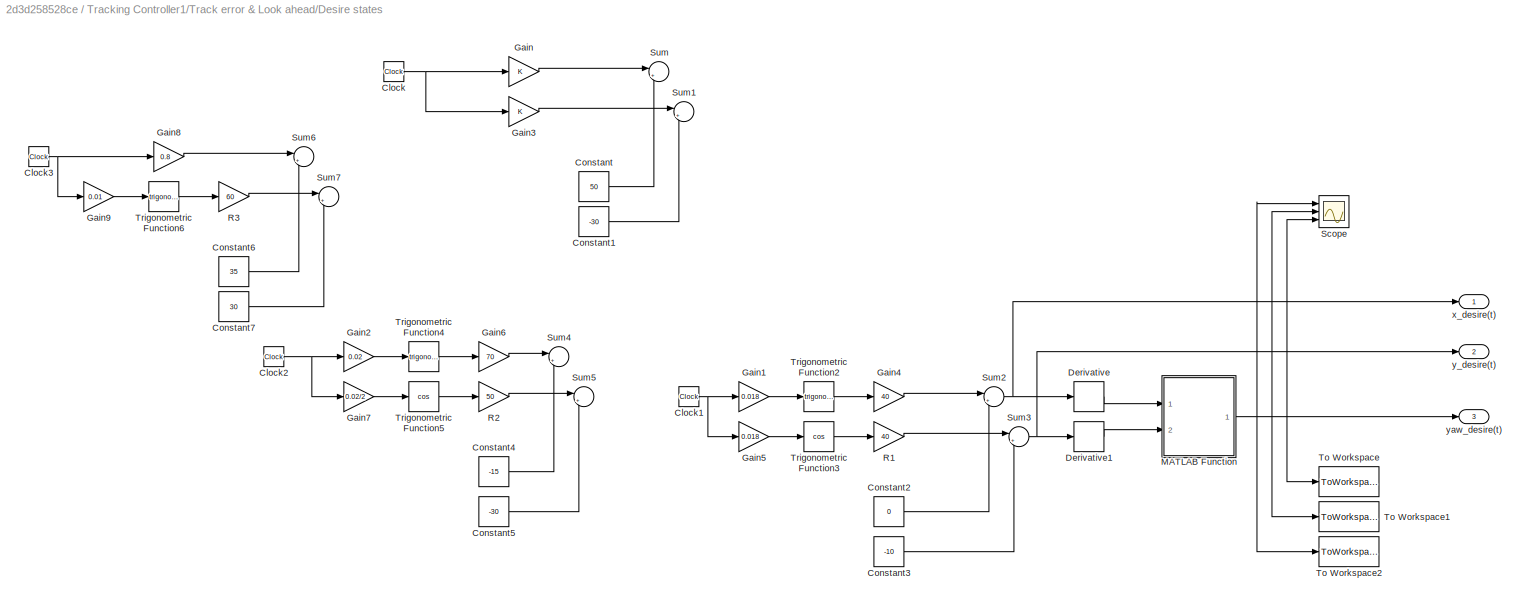
BLOCK [SubSystem] Tracking Controller1/Track error & Look ahead/Desire states
  Ports = [0, 3]
  RequestExecContextInheritance = off
BLOCK [Clock] Tracking Controller1/Track error & Look ahead/Desire states/Clock
BLOCK [Clock] Tracking Controller1/Track error & Look ahead/Desire states/Clock1
BLOCK [Clock] Tracking Controller1/Track error & Look ahead/Desire states/Clock2
BLOCK [Clock] Tracking Controller1/Track error & Look ahead/Desire states/Clock3
BLOCK [Constant] Tracking Controller1/Track error & Look ahead/Desire states/Constant
  Value = 50
BLOCK [Constant] Tracking Controller1/Track error & Look ahead/Desire states/Constant1
  Value = -30
BLOCK [Constant] Tracking Controller1/Track error & Look ahead/Desire states/Constant2
  Value = 0
BLOCK [Constant] Tracking Controller1/Track error & Look ahead/Desire states/Constant3
  Value = -10
BLOCK [Constant] Tracking Controller1/Track error & Look ahead/Desire states/Constant4
  Value = -15
BLOCK [Constant] Tracking Controller1/Track error & Look ahead/Desire states/Constant5
  Value = -30
BLOCK [Constant] Tracking Controller1/Track error & Look ahead/Desire states/Constant6
  Value = 35
BLOCK [Constant] Tracking Controller1/Track error & Look ahead/Desire states/Constant7
  Value = 30
BLOCK [Derivative] Tracking Controller1/Track error & Look ahead/Desire states/Derivative
BLOCK [Derivative] Tracking Controller1/Track error & Look ahead/Desire states/Derivative1
BLOCK [Gain] Tracking Controller1/Track error & Look ahead/Desire states/Gain
  OutDataTypeStr = Inherit: Inherit via internal rule
  ParamDataTypeStr = Inherit: Inherit via internal rule
  SaturateOnIntegerOverflow = off
BLOCK [Gain] Tracking Controller1/Track error & Look ahead/Desire states/Gain1
  Gain = 0.018
  OutDataTypeStr = Inherit: Inherit via internal rule
  ParamDataTypeStr = Inherit: Inherit via internal rule
  SaturateOnIntegerOverflow = off
BLOCK [Gain] Tracking Controller1/Track error & Look ahead/Desire states/Gain2
  Gain = 0.02
  OutDataTypeStr = Inherit: Inherit via internal rule
  ParamDataTypeStr = Inherit: Inherit via internal rule
  SaturateOnIntegerOverflow = off
BLOCK [Gain] Tracking Controller1/Track error & Look ahead/Desire states/Gain3
  OutDataTypeStr = Inherit: Inherit via internal rule
  ParamDataTypeStr = Inherit: Inherit via internal rule
  SaturateOnIntegerOverflow = off
BLOCK [Gain] Tracking Controller1/Track error & Look ahead/Desire states/Gain4
  Gain = 40
  OutDataTypeStr = Inherit: Inherit via internal rule
  ParamDataTypeStr = Inherit: Inherit via internal rule
  SaturateOnIntegerOverflow = off
BLOCK [Gain] Tracking Controller1/Track error & Look ahead/Desire states/Gain5
  Gain = 0.018
  OutDataTypeStr = Inherit: Inherit via internal rule
  ParamDataTypeStr = Inherit: Inherit via internal rule
  SaturateOnIntegerOverflow = off
BLOCK [Gain] Tracking Controller1/Track error & Look ahead/Desire states/Gain6
  Gain = 70
  OutDataTypeStr = Inherit: Inherit via internal rule
  ParamDataTypeStr = Inherit: Inherit via internal rule
  SaturateOnIntegerOverflow = off
BLOCK [Gain] Tracking Controller1/Track error & Look ahead/Desire states/Gain7
  Gain = 0.02/2
  OutDataTypeStr = Inherit: Inherit via internal rule
  ParamDataTypeStr = Inherit: Inherit via internal rule
  SaturateOnIntegerOverflow = off
BLOCK [Gain] Tracking Controller1/Track error & Look ahead/Desire states/Gain8
  Gain = 0.8
  OutDataTypeStr = Inherit: Inherit via internal rule
  ParamDataTypeStr = Inherit: Inherit via internal rule
  SaturateOnIntegerOverflow = off
BLOCK [Gain] Tracking Controller1/Track error & Look ahead/Desire states/Gain9
  Gain = 0.01
  OutDataTypeStr = Inherit: Inherit via internal rule
  ParamDataTypeStr = Inherit: Inherit via internal rule
  SaturateOnIntegerOverflow = off
BLOCK [SubSystem] Tracking Controller1/Track error & Look ahead/Desire states/MATLAB Function
  ErrorFcn = Stateflow.Translate.translate
  PermitHierarchicalResolution = ExplicitOnly
  Ports = [2, 1]
  RequestExecContextInheritance = off
  SFBlockType = MATLAB Function
  TreatAsAtomicUnit = on
BLOCK [Demux] Tracking Controller1/Track error & Look ahead/Desire states/MATLAB Function/ Demux 
  Outputs = 1
  Ports = [1, 1]
BLOCK [S-Function] Tracking Controller1/Track error & Look ahead/Desire states/MATLAB Function/ SFunction 
  EnableBusSupport = on
  FunctionName = sf_sfun
  PortCounts = [2 2]
  Ports = [2, 2]
  SFcnIsStateOwnerBlock = off
  SFunctionDeploymentMode = off
  Tag = Stateflow S-Function USV1_Trajectory_Tracking_PID_Fuzzy4_BachelorThesis 51
BLOCK [Terminator] Tracking Controller1/Track error & Look ahead/Desire states/MATLAB Function/ Terminator 
BLOCK [Inport] Tracking Controller1/Track error & Look ahead/Desire states/MATLAB Function/dx
  IconDisplay = Port number
BLOCK [Inport] Tracking Controller1/Track error & Look ahead/Desire states/MATLAB Function/dy
  IconDisplay = Port number
  Port = 2
BLOCK [Outport] Tracking Controller1/Track error & Look ahead/Desire states/MATLAB Function/yaw
  IconDisplay = Port number
BLOCK [Gain] Tracking Controller1/Track error & Look ahead/Desire states/R1
  Gain = 40
  OutDataTypeStr = Inherit: Inherit via internal rule
  ParamDataTypeStr = Inherit: Inherit via internal rule
  SaturateOnIntegerOverflow = off
BLOCK [Gain] Tracking Controller1/Track error & Look ahead/Desire states/R2
  Gain = 50
  OutDataTypeStr = Inherit: Inherit via internal rule
  ParamDataTypeStr = Inherit: Inherit via internal rule
  SaturateOnIntegerOverflow = off
BLOCK [Gain] Tracking Controller1/Track error & Look ahead/Desire states/R3
  Gain = 60
  OutDataTypeStr = Inherit: Inherit via internal rule
  ParamDataTypeStr = Inherit: Inherit via internal rule
  SaturateOnIntegerOverflow = off
BLOCK [Scope] Tracking Controller1/Track error & Look ahead/Desire states/Scope
  Floating = off
  NumInputPorts = 3
  Ports = [3]
  ScopeSpecificationString = Simulink.scopes.TimeScopeBlockCfg('CurrentConfiguration', extmgr.ConfigurationSet(extmgr.Configuration('Core','General UI',true),extmgr.Configuration('Core','Source UI',true),extmgr.Configuration('Sources','WiredSimulink',true,'DataLoggingVariableName','ScopeData1'),extmgr.Configuration('Visuals','Time Domain',true,'SerializedDisplays',{struct('MinYLimReal','-3.92601','MaxYLimReal','3.92654','YLab...<+2697ch>
BLOCK [Sum] Tracking Controller1/Track error & Look ahead/Desire states/Sum
  IconShape = round
  InputSameDT = off
  Inputs = |++
  OutDataTypeStr = Inherit: Inherit via internal rule
  Ports = [2, 1]
  SaturateOnIntegerOverflow = off
BLOCK [Sum] Tracking Controller1/Track error & Look ahead/Desire states/Sum1
  IconShape = round
  InputSameDT = off
  Inputs = |++
  OutDataTypeStr = Inherit: Inherit via internal rule
  Ports = [2, 1]
  SaturateOnIntegerOverflow = off
BLOCK [Sum] Tracking Controller1/Track error & Look ahead/Desire states/Sum2
  IconShape = round
  InputSameDT = off
  Inputs = |++
  OutDataTypeStr = Inherit: Inherit via internal rule
  Ports = [2, 1]
  SaturateOnIntegerOverflow = off
BLOCK [Sum] Tracking Controller1/Track error & Look ahead/Desire states/Sum3
  IconShape = round
  InputSameDT = off
  Inputs = |++
  OutDataTypeStr = Inherit: Inherit via internal rule
  Ports = [2, 1]
  SaturateOnIntegerOverflow = off
BLOCK [Sum] Tracking Controller1/Track error & Look ahead/Desire states/Sum4
  IconShape = round
  InputSameDT = off
  Inputs = |++
  OutDataTypeStr = Inherit: Inherit via internal rule
  Ports = [2, 1]
  SaturateOnIntegerOverflow = off
BLOCK [Sum] Tracking Controller1/Track error & Look ahead/Desire states/Sum5
  IconShape = round
  InputSameDT = off
  Inputs = |++
  OutDataTypeStr = Inherit: Inherit via internal rule
  Ports = [2, 1]
  SaturateOnIntegerOverflow = off
BLOCK [Sum] Tracking Controller1/Track error & Look ahead/Desire states/Sum6
  IconShape = round
  InputSameDT = off
  Inputs = |++
  OutDataTypeStr = Inherit: Inherit via internal rule
  Ports = [2, 1]
  SaturateOnIntegerOverflow = off
BLOCK [Sum] Tracking Controller1/Track error & Look ahead/Desire states/Sum7
  IconShape = round
  InputSameDT = off
  Inputs = |++
  OutDataTypeStr = Inherit: Inherit via internal rule
  Ports = [2, 1]
  SaturateOnIntegerOverflow = off
BLOCK [ToWorkspace] Tracking Controller1/Track error & Look ahead/Desire states/To Workspace
  FixptAsFi = on
  MaxDataPoints = inf
  Ports = [1]
  SampleTime = -1
  Save2DSignal = 3-D array (concatenate along third dimension)
  VariableName = x_desire
BLOCK [ToWorkspace] Tracking Controller1/Track error & Look ahead/Desire states/To Workspace1
  FixptAsFi = on
  MaxDataPoints = inf
  Ports = [1]
  SampleTime = -1
  Save2DSignal = 3-D array (concatenate along third dimension)
  VariableName = y_desire
BLOCK [ToWorkspace] Tracking Controller1/Track error & Look ahead/Desire states/To Workspace2
  FixptAsFi = on
  MaxDataPoints = inf
  Ports = [1]
  SampleTime = -1
  Save2DSignal = 3-D array (concatenate along third dimension)
  VariableName = yaw_desire
BLOCK [Trigonometry] Tracking Controller1/Track error & Look ahead/Desire states/Trigonometric Function2
  OutputSignalType = real
  Ports = [1, 1]
BLOCK [Trigonometry] Tracking Controller1/Track error & Look ahead/Desire states/Trigonometric Function3
  Operator = cos
  OutputSignalType = real
  Ports = [1, 1]
BLOCK [Trigonometry] Tracking Controller1/Track error & Look ahead/Desire states/Trigonometric Function4
  OutputSignalType = real
  Ports = [1, 1]
BLOCK [Trigonometry] Tracking Controller1/Track error & Look ahead/Desire states/Trigonometric Function5
  Operator = cos
  OutputSignalType = real
  Ports = [1, 1]
BLOCK [Trigonometry] Tracking Controller1/Track error & Look ahead/Desire states/Trigonometric Function6
  OutputSignalType = real
  Ports = [1, 1]
BLOCK [Outport] Tracking Controller1/Track error & Look ahead/Desire states/x_desire(t)
  IconDisplay = Port number
BLOCK [Outport] Tracking Controller1/Track error & Look ahead/Desire states/y_desire(t)
  IconDisplay = Port number
  Port = 2
BLOCK [Outport] Tracking Controller1/Track error & Look ahead/Desire states/yaw_desire(t)
  IconDisplay = Port number
  Port = 3
BLOCK [Constant] Tracking Controller1/Track error & Look ahead/Look ahead
  Value = 40
BLOCK [SubSystem] Tracking Controller1/Track error & Look ahead/MATLAB Function
  ErrorFcn = Stateflow.Translate.translate
  PermitHierarchicalResolution = ExplicitOnly
  Ports = [4, 2]
  RequestExecContextInheritance = off
  SFBlockType = MATLAB Function
  TreatAsAtomicUnit = on
BLOCK [Demux] Tracking Controller1/Track error & Look ahead/MATLAB Function/ Demux 
  Outputs = 1
  Ports = [1, 1]
BLOCK [S-Function] Tracking Controller1/Track error & Look ahead/MATLAB Function/ SFunction 
  EnableBusSupport = on
  FunctionName = sf_sfun
  PortCounts = [4 3]
  Ports = [4, 3]
  SFcnIsStateOwnerBlock = off
  SFunctionDeploymentMode = off
  Tag = Stateflow S-Function USV1_Trajectory_Tracking_PID_Fuzzy4_BachelorThesis 52
BLOCK [Terminator] Tracking Controller1/Track error & Look ahead/MATLAB Function/ Terminator 
BLOCK [Inport] Tracking Controller1/Track error & Look ahead/MATLAB Function/look_ahead
  IconDisplay = Port number
BLOCK [Inport] Tracking Controller1/Track error & Look ahead/MATLAB Function/x_desire
  IconDisplay = Port number
  Port = 2
BLOCK [Outport] Tracking Controller1/Track error & Look ahead/MATLAB Function/x_target
  IconDisplay = Port number
BLOCK [Inport] Tracking Controller1/Track error & Look ahead/MATLAB Function/y_desire
  IconDisplay = Port number
  Port = 3
BLOCK [Outport] Tracking Controller1/Track error & Look ahead/MATLAB Function/y_target
  IconDisplay = Port number
  Port = 2
BLOCK [Inport] Tracking Controller1/Track error & Look ahead/MATLAB Function/yaw
  IconDisplay = Port number
  Port = 4
BLOCK [SubSystem] Tracking Controller1/Track error & Look ahead/MATLAB Function1
  ErrorFcn = Stateflow.Translate.translate
  PermitHierarchicalResolution = ExplicitOnly
  Ports = [3, 2]
  RequestExecContextInheritance = off
  SFBlockType = MATLAB Function
  TreatAsAtomicUnit = on
BLOCK [Demux] Tracking Controller1/Track error & Look ahead/MATLAB Function1/ Demux 
  Outputs = 1
  Ports = [1, 1]
BLOCK [S-Function] Tracking Controller1/Track error & Look ahead/MATLAB Function1/ SFunction 
  EnableBusSupport = on
  FunctionName = sf_sfun
  PortCounts = [3 3]
  Ports = [3, 3]
  SFcnIsStateOwnerBlock = off
  SFunctionDeploymentMode = off
  Tag = Stateflow S-Function USV1_Trajectory_Tracking_PID_Fuzzy4_BachelorThesis 53
BLOCK [Terminator] Tracking Controller1/Track error & Look ahead/MATLAB Function1/ Terminator 
BLOCK [Outport] Tracking Controller1/Track error & Look ahead/MATLAB Function1/along_e
  IconDisplay = Port number
BLOCK [Outport] Tracking Controller1/Track error & Look ahead/MATLAB Function1/cross_e
  IconDisplay = Port number
  Port = 2
BLOCK [Inport] Tracking Controller1/Track error & Look ahead/MATLAB Function1/delta_x
  IconDisplay = Port number
  Port = 2
BLOCK [Inport] Tracking Controller1/Track error & Look ahead/MATLAB Function1/delta_y
  IconDisplay = Port number
  Port = 3
BLOCK [Inport] Tracking Controller1/Track error & Look ahead/MATLAB Function1/yaw
  IconDisplay = Port number
BLOCK [SubSystem] Tracking Controller1/Track error & Look ahead/MATLAB Function2
  ErrorFcn = Stateflow.Translate.translate
  PermitHierarchicalResolution = ExplicitOnly
  Ports = [2, 1]
  RequestExecContextInheritance = off
  SFBlockType = MATLAB Function
  TreatAsAtomicUnit = on
BLOCK [Demux] Tracking Controller1/Track error & Look ahead/MATLAB Function2/ Demux 
  Outputs = 1
  Ports = [1, 1]
BLOCK [S-Function] Tracking Controller1/Track error & Look ahead/MATLAB Function2/ SFunction 
  EnableBusSupport = on
  FunctionName = sf_sfun
  PortCounts = [2 2]
  Ports = [2, 2]
  SFcnIsStateOwnerBlock = off
  SFunctionDeploymentMode = off
  Tag = Stateflow S-Function USV1_Trajectory_Tracking_PID_Fuzzy4_BachelorThesis 54
BLOCK [Terminator] Tracking Controller1/Track error & Look ahead/MATLAB Function2/ Terminator 
BLOCK [Outport] Tracking Controller1/Track error & Look ahead/MATLAB Function2/U_d
  IconDisplay = Port number
BLOCK [Inport] Tracking Controller1/Track error & Look ahead/MATLAB Function2/Vx_d
  IconDisplay = Port number
BLOCK [Inport] Tracking Controller1/Track error & Look ahead/MATLAB Function2/Vy_d
  IconDisplay = Port number
  Port = 2
BLOCK [SubSystem] Tracking Controller1/Track error & Look ahead/MATLAB Function3
  ErrorFcn = Stateflow.Translate.translate
  PermitHierarchicalResolution = ExplicitOnly
  Ports = [1, 1]
  RequestExecContextInheritance = off
  SFBlockType = MATLAB Function
  TreatAsAtomicUnit = on
BLOCK [Demux] Tracking Controller1/Track error & Look ahead/MATLAB Function3/ Demux 
  Outputs = 1
  Ports = [1, 1]
BLOCK [S-Function] Tracking Controller1/Track error & Look ahead/MATLAB Function3/ SFunction 
  EnableBusSupport = on
  FunctionName = sf_sfun
  PortCounts = [1 2]
  Ports = [1, 2]
  SFcnIsStateOwnerBlock = off
  SFunctionDeploymentMode = off
  Tag = Stateflow S-Function USV1_Trajectory_Tracking_PID_Fuzzy4_BachelorThesis 4
BLOCK [Terminator] Tracking Controller1/Track error & Look ahead/MATLAB Function3/ Terminator 
BLOCK [Inport] Tracking Controller1/Track error & Look ahead/MATLAB Function3/u
  IconDisplay = Port number
BLOCK [Outport] Tracking Controller1/Track error & Look ahead/MATLAB Function3/y
  IconDisplay = Port number
BLOCK [Saturate] Tracking Controller1/Track error & Look ahead/Saturation
  InputPortMap = u0
  LowerLimit = -0.1
  Ports = [1, 1]
  UpperLimit = 5
BLOCK [Scope] Tracking Controller1/Track error & Look ahead/Scope1
  Floating = off
  NumInputPorts = 2
  Ports = [2]
  ScopeSpecificationString = Simulink.scopes.TimeScopeBlockCfg('CurrentConfiguration', extmgr.ConfigurationSet(extmgr.Configuration('Core','General UI',true),extmgr.Configuration('Core','Source UI',true),extmgr.Configuration('Sources','WiredSimulink',true,'DataLoggingVariableName','ScopeData4'),extmgr.Configuration('Visuals','Time Domain',true,'SerializedDisplays',{struct('MinYLimReal','-0.08437','MaxYLimReal','0.75937','YLab...<+2073ch>
BLOCK [Scope] Tracking Controller1/Track error & Look ahead/Scope2
  Floating = off
  NumInputPorts = 2
  Ports = [2]
  ScopeSpecificationString = Simulink.scopes.TimeScopeBlockCfg('CurrentConfiguration', extmgr.ConfigurationSet(extmgr.Configuration('Core','General UI',true,'FigureColor',[1 1 1]),extmgr.Configuration('Core','Source UI',true),extmgr.Configuration('Sources','WiredSimulink',true,'DataLoggingVariableName','ScopeData5'),extmgr.Configuration('Visuals','Time Domain',true,'SerializedDisplays',{struct('MinYLimReal','-46.16716','MaxYL...<+2387ch>
BLOCK [Scope] Tracking Controller1/Track error & Look ahead/Scope3
  Floating = off
  NumInputPorts = 2
  Ports = [2]
  ScopeSpecificationString = Simulink.scopes.TimeScopeBlockCfg('CurrentConfiguration', extmgr.ConfigurationSet(extmgr.Configuration('Core','General UI',true),extmgr.Configuration('Core','Source UI',true),extmgr.Configuration('Sources','WiredSimulink',true,'DataLoggingVariableName','ScopeData2'),extmgr.Configuration('Visuals','Time Domain',true,'SerializedDisplays',{struct('MinYLimReal','-135.8781','MaxYLimReal','109.79601','Y...<+2074ch>
BLOCK [Sum] Tracking Controller1/Track error & Look ahead/Sum
  IconShape = round
  InputSameDT = off
  Inputs = +-|
  OutDataTypeStr = Inherit: Inherit via internal rule
  Ports = [2, 1]
  SaturateOnIntegerOverflow = off
BLOCK [Sum] Tracking Controller1/Track error & Look ahead/Sum1
  IconShape = round
  InputSameDT = off
  Inputs = +-|
  OutDataTypeStr = Inherit: Inherit via internal rule
  Ports = [2, 1]
  SaturateOnIntegerOverflow = off
BLOCK [Outport] Tracking Controller1/Track error & Look ahead/U_d
  IconDisplay = Port number
BLOCK [Derivative] Tracking Controller1/Track error & Look ahead/Vx_desire
BLOCK [Derivative] Tracking Controller1/Track error & Look ahead/Vy_desire
BLOCK [Outport] Tracking Controller1/Track error & Look ahead/along_e
  IconDisplay = Port number
  Port = 2
BLOCK [Outport] Tracking Controller1/Track error & Look ahead/cross_e
  IconDisplay = Port number
  Port = 3
BLOCK [Inport] Tracking Controller1/Track error & Look ahead/x
  IconDisplay = Port number
BLOCK [Outport] Tracking Controller1/Track error & Look ahead/x_target
  IconDisplay = Port number
  Port = 4
BLOCK [Inport] Tracking Controller1/Track error & Look ahead/y
  IconDisplay = Port number
  Port = 2
BLOCK [Outport] Tracking Controller1/Track error & Look ahead/y_target
  IconDisplay = Port number
  Port = 5
BLOCK [Outport] Tracking Controller1/Track error & Look ahead/yaw
  IconDisplay = Port number
  Port = 6
BLOCK [SubSystem] Tracking Controller1/Wrap yaw angle
  ErrorFcn = Stateflow.Translate.translate
  PermitHierarchicalResolution = ExplicitOnly
  Ports = [1, 1]
  RequestExecContextInheritance = off
  SFBlockType = MATLAB Function
  TreatAsAtomicUnit = on
BLOCK [Demux] Tracking Controller1/Wrap yaw angle/ Demux 
  Outputs = 1
  Ports = [1, 1]
BLOCK [S-Function] Tracking Controller1/Wrap yaw angle/ SFunction 
  EnableBusSupport = on
  FunctionName = sf_sfun
  PortCounts = [1 2]
  Ports = [1, 2]
  SFcnIsStateOwnerBlock = off
  SFunctionDeploymentMode = off
  Tag = Stateflow S-Function USV1_Trajectory_Tracking_PID_Fuzzy4_BachelorThesis 6
BLOCK [Terminator] Tracking Controller1/Wrap yaw angle/ Terminator 
BLOCK [Inport] Tracking Controller1/Wrap yaw angle/yaw
  IconDisplay = Port number
BLOCK [Outport] Tracking Controller1/Wrap yaw angle/yaw_2pi
  IconDisplay = Port number
BLOCK [Inport] Tracking Controller1/Yaw angle
  IconDisplay = Port number
  Port = 3
BLOCK [Outport] Tracking Controller1/Yaw error
  IconDisplay = Port number
  Port = 2
BLOCK [Constant] Tracking Controller1/k
  Value = 1.2
BLOCK [Constant] Tracking Controller1/k1
  Value = 40
BLOCK [Outport] Tracking Controller1/u Control
  IconDisplay = Port number
BLOCK [Inport] Tracking Controller1/x
  IconDisplay = Port number
BLOCK [Outport] Tracking Controller1/x e
  IconDisplay = Port number
  Port = 3
BLOCK [Inport] Tracking Controller1/y
  IconDisplay = Port number
  Port = 2
BLOCK [Outport] Tracking Controller1/y e
  IconDisplay = Port number
  Port = 4
BLOCK [StateSpace] USV Model1
  A = A
  B = B
  C = C
  D = D
  InitialCondition = [0 0 0 pi/4]
  Ports = [1, 1]
BLOCK [SubSystem] Yaw Wrap 2pi1
  Ports = [1, 1]
  RequestExecContextInheritance = off
BLOCK [Demux] Yaw Wrap 2pi1/Demux
  DisplayOption = bar
  Ports = [1, 4]
BLOCK [Inport] Yaw Wrap 2pi1/I1
  IconDisplay = Port number
BLOCK [Mux] Yaw Wrap 2pi1/Mux
  DisplayOption = bar
  Ports = [4, 1]
BLOCK [Outport] Yaw Wrap 2pi1/O1
  IconDisplay = Port number
BLOCK [SubSystem] Yaw Wrap 2pi1/Wrap yaw angle
  ErrorFcn = Stateflow.Translate.translate
  PermitHierarchicalResolution = ExplicitOnly
  Ports = [1, 1]
  RequestExecContextInheritance = off
  SFBlockType = MATLAB Function
  TreatAsAtomicUnit = on
BLOCK [Demux] Yaw Wrap 2pi1/Wrap yaw angle/ Demux 
  Outputs = 1
  Ports = [1, 1]
BLOCK [S-Function] Yaw Wrap 2pi1/Wrap yaw angle/ SFunction 
  EnableBusSupport = on
  FunctionName = sf_sfun
  PortCounts = [1 2]
  Ports = [1, 2]
  SFcnIsStateOwnerBlock = off
  SFunctionDeploymentMode = off
  Tag = Stateflow S-Function USV1_Trajectory_Tracking_PID_Fuzzy4_BachelorThesis 56
BLOCK [Terminator] Yaw Wrap 2pi1/Wrap yaw angle/ Terminator 
BLOCK [Inport] Yaw Wrap 2pi1/Wrap yaw angle/yaw
  IconDisplay = Port number
BLOCK [Outport] Yaw Wrap 2pi1/Wrap yaw angle/yaw_2pi
  IconDisplay = Port number
LINE Demux:1 -> Scope1:1
LINE Demux:2 -> Scope1:2
LINE Demux:3 -> Scope1:3
LINE Demux:4 -> Scope1:4
LINE Motor Model/Clock1:1 -> Motor Model/Gain2:1
LINE Motor Model/Clock2:1 -> Motor Model/Gain4:1
LINE Motor Model/Clock:1 -> Motor Model/Gain:1
LINE Motor Model/Gain1:1 -> Motor Model/Sum:2
LINE Motor Model/Gain2:1 -> Motor Model/Trigonometric Function1:1
LINE Motor Model/Gain3:1 -> Motor Model/Sum1:2
LINE Motor Model/Gain4:1 -> Motor Model/Trigonometric Function2:1
LINE Motor Model/Gain5:1 -> Motor Model/Sum2:2
LINE Motor Model/Gain:1 -> Motor Model/Trigonometric Function:1
LINE Motor Model/Mux2:1 -> Motor Model/Scope2:1
LINE Motor Model/Mux3:1 -> Motor Model/Scope3:1
LINE Motor Model/Mux:1 -> Motor Model/Resultant Forces, moments:1
LINE Motor Model/Resultant forces, moments:1 -> Motor Model/Sum:1
LINE Motor Model/Resultant forces, moments:2 -> Motor Model/Sum1:1
LINE Motor Model/Resultant forces, moments:3 -> Motor Model/Sum2:1
NET Motor Model/Saturation1:1 -> Motor Model/Resultant forces, moments:2, Motor Model/Scope1:2
NET Motor Model/Saturation:1 -> Motor Model/Resultant forces, moments:1, Motor Model/Scope1:1
NET Motor Model/Sum1:1 -> Motor Model/Mux3:2, Motor Model/Mux:2
NET Motor Model/Sum2:1 -> Motor Model/Mux3:1, Motor Model/Mux:3
NET Motor Model/Sum:1 -> Motor Model/Mux3:3, Motor Model/Mux:1
LINE Motor Model/Transfer Fcn2:1 -> Motor Model/Saturation:1
LINE Motor Model/Transfer Fcn3:1 -> Motor Model/Saturation1:1
LINE Motor Model/Trigonometric Function1:1 -> Motor Model/Gain3:1
LINE Motor Model/Trigonometric Function2:1 -> Motor Model/Gain5:1
LINE Motor Model/Trigonometric Function:1 -> Motor Model/Gain1:1
NET Motor Model/f1_PWM:1 -> Motor Model/Mux2:1, Motor Model/Transfer Fcn3:1
NET Motor Model/f2_PWM:1 -> Motor Model/Mux2:2, Motor Model/Transfer Fcn2:1
LINE Motor Model/r:1 -> Motor Model/Resultant forces, moments:3
NET Motor Model:1 -> Scope8:1, Scope9:1, USV Model1:1
LINE NED frame/Band-Limited White Noise1:1 -> NED frame/Sum1:2
LINE NED frame/Band-Limited White Noise2:1 -> NED frame/Sum2:2
LINE NED frame/Band-Limited White Noise:1 -> NED frame/Sum:2
NET NED frame/Demux:1 -> NED frame/Frame Transformation:1, NED frame/MATLAB Function:1, NED frame/u:1
NET NED frame/Demux:2 -> NED frame/Frame Transformation:2, NED frame/MATLAB Function:2
LINE NED frame/Demux:3 -> NED frame/Terminator1:1
NET NED frame/Demux:4 -> NED frame/Frame Transformation:3, NED frame/Yaw_angle:1
NET NED frame/Frame Transformation/MATLAB Function:1 -> NED frame/Frame Transformation/Mux:1, NED frame/Frame Transformation/Vx:1
NET NED frame/Frame Transformation/MATLAB Function:2 -> NED frame/Frame Transformation/Mux:2, NED frame/Frame Transformation/Vy:1
LINE NED frame/Frame Transformation/Mux:1 -> NED frame/Frame Transformation/Scope:1
NET NED frame/Frame Transformation/Yaw_angle:1 -> NED frame/Frame Transformation/MATLAB Function:3, NED frame/Frame Transformation/Yaw angle:1
LINE NED frame/Frame Transformation/u:1 -> NED frame/Frame Transformation/MATLAB Function:1
LINE NED frame/Frame Transformation/v:1 -> NED frame/Frame Transformation/MATLAB Function:2
NET NED frame/Frame Transformation:1 -> NED frame/Integrator1:1, NED frame/Mux9:2
NET NED frame/Frame Transformation:2 -> NED frame/Integrator3:1, NED frame/Mux9:1
NET NED frame/Frame Transformation:3 -> NED frame/Mux3:3, NED frame/Sum2:1
NET NED frame/Integrator1:1 -> NED frame/Mux3:1, NED frame/Sum:1, NED frame/x_NED:1
NET NED frame/Integrator3:1 -> NED frame/Mux3:2, NED frame/Sum1:1, NED frame/y_NED:1
LINE NED frame/MATLAB Function:1 -> NED frame/Beta:1
LINE NED frame/Mux3:1 -> NED frame/Scope4:1
LINE NED frame/Mux9:1 -> NED frame/Scope12:1
LINE NED frame/Real states:1 -> NED frame/Demux:1
LINE NED frame/Sum1:1 -> NED frame/To Workspace1:1
LINE NED frame/Sum2:1 -> NED frame/To Workspace2:1
LINE NED frame/Sum:1 -> NED frame/To Workspace:1
LINE NED frame:1 -> Tracking Controller1:1
LINE NED frame:2 -> Tracking Controller1:2
LINE NED frame:3 -> Tracking Controller1:3
LINE NED frame:4 -> Tracking Controller1:4
LINE NED frame:5 -> PID + Thrust Allocation:1
LINE PID + Thrust Allocation/-r- :1 -> PID + Thrust Allocation/Thrust Allocation:2
LINE PID + Thrust Allocation/Constant1:1 -> PID + Thrust Allocation/Terminator1:1
NET PID + Thrust Allocation/Derivative1:1 -> PID + Thrust Allocation/PID Controller:11, PID + Thrust Allocation/Scope2:2, PID + Thrust Allocation/Scope4:2
NET PID + Thrust Allocation/Derivative:1 -> PID + Thrust Allocation/PID Controller:8, PID + Thrust Allocation/Scope1:2, PID + Thrust Allocation/Scope3:2
NET PID + Thrust Allocation/Fuzzy Logic Controller1:1 -> PID + Thrust Allocation/PID Controller:4, PID + Thrust Allocation/Scope6:1
NET PID + Thrust Allocation/Fuzzy Logic Controller:1 -> PID + Thrust Allocation/PID Controller:1, PID + Thrust Allocation/Scope5:1
NET PID + Thrust Allocation/Integrator1:1 -> PID + Thrust Allocation/PID Controller:12, PID + Thrust Allocation/Scope2:3, PID + Thrust Allocation/Scope4:3
NET PID + Thrust Allocation/Integrator:1 -> PID + Thrust Allocation/PID Controller:9, PID + Thrust Allocation/Scope1:3, PID + Thrust Allocation/Scope3:3
LINE PID + Thrust Allocation/Kd_psi:1 -> PID + Thrust Allocation/PID Controller:5
LINE PID + Thrust Allocation/Kd_u :1 -> PID + Thrust Allocation/PID Controller:2
LINE PID + Thrust Allocation/Ki_psi:1 -> PID + Thrust Allocation/PID Controller:6
LINE PID + Thrust Allocation/Ki_u:1 -> PID + Thrust Allocation/PID Controller:3
NET PID + Thrust Allocation/PID Controller:1 -> PID + Thrust Allocation/Scope:1, PID + Thrust Allocation/Thrust Allocation:1
NET PID + Thrust Allocation/PID Controller:2 -> PID + Thrust Allocation/Scope:2, PID + Thrust Allocation/Thrust Allocation:3
LINE PID + Thrust Allocation/Saturation1:1 -> PID + Thrust Allocation/f2_PWM:1
LINE PID + Thrust Allocation/Saturation2:1 -> PID + Thrust Allocation/Thrust Allocation1:1
LINE PID + Thrust Allocation/Saturation3:1 -> PID + Thrust Allocation/Thrust Allocation2:1
LINE PID + Thrust Allocation/Saturation:1 -> PID + Thrust Allocation/f1_PWM:1
NET PID + Thrust Allocation/Sum1:1 -> PID + Thrust Allocation/Derivative:1, PID + Thrust Allocation/Fuzzy Logic Controller:1, PID + Thrust Allocation/Integrator:1, PID + Thrust Allocation/PID Controller:7, PID + Thrust Allocation/Scope1:1, PID + Thrust Allocation/Scope3:1, PID + Thrust Allocation/u error:1
LINE PID + Thrust Allocation/Thrust Allocation1:1 -> PID + Thrust Allocation/Saturation:1
LINE PID + Thrust Allocation/Thrust Allocation2:1 -> PID + Thrust Allocation/Saturation1:1
LINE PID + Thrust Allocation/Thrust Allocation:1 -> PID + Thrust Allocation/Saturation2:1
LINE PID + Thrust Allocation/Thrust Allocation:2 -> PID + Thrust Allocation/Saturation3:1
NET PID + Thrust Allocation/Yaw error:1 -> PID + Thrust Allocation/Derivative1:1, PID + Thrust Allocation/Fuzzy Logic Controller1:1, PID + Thrust Allocation/Integrator1:1, PID + Thrust Allocation/PID Controller:10, PID + Thrust Allocation/Scope2:1, PID + Thrust Allocation/Scope4:1, PID + Thrust Allocation/yaw error:1
LINE PID + Thrust Allocation/u Control:1 -> PID + Thrust Allocation/Sum1:1
LINE PID + Thrust Allocation/u_Real:1 -> PID + Thrust Allocation/Sum1:2
LINE PID + Thrust Allocation:1 -> Motor Model:1
LINE PID + Thrust Allocation:2 -> Motor Model:2
LINE PID + Thrust Allocation:3 -> Scope1:7
LINE PID + Thrust Allocation:4 -> Scope1:8
NET Tracking Controller1/Beta:1 -> Tracking Controller1/Scope6:1, Tracking Controller1/Sum2:2
LINE Tracking Controller1/Constant2:1 -> Tracking Controller1/Surge Velocity Control:6
LINE Tracking Controller1/Constant3:1 -> Tracking Controller1/Surge Velocity Control:7
LINE Tracking Controller1/Delta yaw:1 -> Tracking Controller1/Wrap yaw angle:1
LINE Tracking Controller1/Delta yaw:2 -> Tracking Controller1/Scope1:3
LINE Tracking Controller1/Delta yaw:3 -> Tracking Controller1/Scope1:2
LINE Tracking Controller1/Delta yaw:4 -> Tracking Controller1/Scope1:1
LINE Tracking Controller1/MATLAB Function:1 -> Tracking Controller1/Sum2:1
NET Tracking Controller1/Sum1:1 -> Tracking Controller1/Scope2:1, Tracking Controller1/Target angle:2
NET Tracking Controller1/Sum2:1 -> Tracking Controller1/Delta yaw:1, Tracking Controller1/Scope3:2, Tracking Controller1/Scope5:1
LINE Tracking Controller1/Sum3:1 -> Tracking Controller1/Scope7:1
NET Tracking Controller1/Sum:1 -> Tracking Controller1/Scope2:2, Tracking Controller1/Target angle:1
NET Tracking Controller1/Surge Velocity Control:1 -> Tracking Controller1/Scope8:1, Tracking Controller1/u Control:1
LINE Tracking Controller1/Target angle:1 -> Tracking Controller1/Terminator:1
LINE Tracking Controller1/Target angle:2 -> Tracking Controller1/Sum3:2
NET Tracking Controller1/Track error & Look ahead/Desire states/Clock1:1 -> Tracking Controller1/Track error & Look ahead/Desire states/Gain1:1, Tracking Controller1/Track error & Look ahead/Desire states/Gain5:1
NET Tracking Controller1/Track error & Look ahead/Desire states/Clock2:1 -> Tracking Controller1/Track error & Look ahead/Desire states/Gain2:1, Tracking Controller1/Track error & Look ahead/Desire states/Gain7:1
NET Tracking Controller1/Track error & Look ahead/Desire states/Clock3:1 -> Tracking Controller1/Track error & Look ahead/Desire states/Gain8:1, Tracking Controller1/Track error & Look ahead/Desire states/Gain9:1
NET Tracking Controller1/Track error & Look ahead/Desire states/Clock:1 -> Tracking Controller1/Track error & Look ahead/Desire states/Gain3:1, Tracking Controller1/Track error & Look ahead/Desire states/Gain:1
LINE Tracking Controller1/Track error & Look ahead/Desire states/Constant1:1 -> Tracking Controller1/Track error & Look ahead/Desire states/Sum1:2
LINE Tracking Controller1/Track error & Look ahead/Desire states/Constant2:1 -> Tracking Controller1/Track error & Look ahead/Desire states/Sum2:2
LINE Tracking Controller1/Track error & Look ahead/Desire states/Constant3:1 -> Tracking Controller1/Track error & Look ahead/Desire states/Sum3:2
LINE Tracking Controller1/Track error & Look ahead/Desire states/Constant4:1 -> Tracking Controller1/Track error & Look ahead/Desire states/Sum4:2
LINE Tracking Controller1/Track error & Look ahead/Desire states/Constant5:1 -> Tracking Controller1/Track error & Look ahead/Desire states/Sum5:2
LINE Tracking Controller1/Track error & Look ahead/Desire states/Constant6:1 -> Tracking Controller1/Track error & Look ahead/Desire states/Sum6:2
LINE Tracking Controller1/Track error & Look ahead/Desire states/Constant7:1 -> Tracking Controller1/Track error & Look ahead/Desire states/Sum7:2
LINE Tracking Controller1/Track error & Look ahead/Desire states/Constant:1 -> Tracking Controller1/Track error & Look ahead/Desire states/Sum:2
LINE Tracking Controller1/Track error & Look ahead/Desire states/Derivative1:1 -> Tracking Controller1/Track error & Look ahead/Desire states/MATLAB Function:2
LINE Tracking Controller1/Track error & Look ahead/Desire states/Derivative:1 -> Tracking Controller1/Track error & Look ahead/Desire states/MATLAB Function:1
LINE Tracking Controller1/Track error & Look ahead/Desire states/Gain1:1 -> Tracking Controller1/Track error & Look ahead/Desire states/Trigonometric Function2:1
LINE Tracking Controller1/Track error & Look ahead/Desire states/Gain2:1 -> Tracking Controller1/Track error & Look ahead/Desire states/Trigonometric Function4:1
LINE Tracking Controller1/Track error & Look ahead/Desire states/Gain3:1 -> Tracking Controller1/Track error & Look ahead/Desire states/Sum1:1
LINE Tracking Controller1/Track error & Look ahead/Desire states/Gain4:1 -> Tracking Controller1/Track error & Look ahead/Desire states/Sum2:1
LINE Tracking Controller1/Track error & Look ahead/Desire states/Gain5:1 -> Tracking Controller1/Track error & Look ahead/Desire states/Trigonometric Function3:1
LINE Tracking Controller1/Track error & Look ahead/Desire states/Gain6:1 -> Tracking Controller1/Track error & Look ahead/Desire states/Sum4:1
LINE Tracking Controller1/Track error & Look ahead/Desire states/Gain7:1 -> Tracking Controller1/Track error & Look ahead/Desire states/Trigonometric Function5:1
LINE Tracking Controller1/Track error & Look ahead/Desire states/Gain8:1 -> Tracking Controller1/Track error & Look ahead/Desire states/Sum6:1
LINE Tracking Controller1/Track error & Look ahead/Desire states/Gain9:1 -> Tracking Controller1/Track error & Look ahead/Desire states/Trigonometric Function6:1
LINE Tracking Controller1/Track error & Look ahead/Desire states/Gain:1 -> Tracking Controller1/Track error & Look ahead/Desire states/Sum:1
NET Tracking Controller1/Track error & Look ahead/Desire states/MATLAB Function:1 -> Tracking Controller1/Track error & Look ahead/Desire states/Scope:1, Tracking Controller1/Track error & Look ahead/Desire states/To Workspace2:1, Tracking Controller1/Track error & Look ahead/Desire states/yaw_desire(t):1
LINE Tracking Controller1/Track error & Look ahead/Desire states/R1:1 -> Tracking Controller1/Track error & Look ahead/Desire states/Sum3:1
LINE Tracking Controller1/Track error & Look ahead/Desire states/R2:1 -> Tracking Controller1/Track error & Look ahead/Desire states/Sum5:1
LINE Tracking Controller1/Track error & Look ahead/Desire states/R3:1 -> Tracking Controller1/Track error & Look ahead/Desire states/Sum7:1
NET Tracking Controller1/Track error & Look ahead/Desire states/Sum2:1 -> Tracking Controller1/Track error & Look ahead/Desire states/Derivative:1, Tracking Controller1/Track error & Look ahead/Desire states/Scope:3, Tracking Controller1/Track error & Look ahead/Desire states/To Workspace:1, Tracking Controller1/Track error & Look ahead/Desire states/x_desire(t):1
NET Tracking Controller1/Track error & Look ahead/Desire states/Sum3:1 -> Tracking Controller1/Track error & Look ahead/Desire states/Derivative1:1, Tracking Controller1/Track error & Look ahead/Desire states/Scope:2, Tracking Controller1/Track error & Look ahead/Desire states/To Workspace1:1, Tracking Controller1/Track error & Look ahead/Desire states/y_desire(t):1
LINE Tracking Controller1/Track error & Look ahead/Desire states/Trigonometric Function2:1 -> Tracking Controller1/Track error & Look ahead/Desire states/Gain4:1
LINE Tracking Controller1/Track error & Look ahead/Desire states/Trigonometric Function3:1 -> Tracking Controller1/Track error & Look ahead/Desire states/R1:1
LINE Tracking Controller1/Track error & Look ahead/Desire states/Trigonometric Function4:1 -> Tracking Controller1/Track error & Look ahead/Desire states/Gain6:1
LINE Tracking Controller1/Track error & Look ahead/Desire states/Trigonometric Function5:1 -> Tracking Controller1/Track error & Look ahead/Desire states/R2:1
LINE Tracking Controller1/Track error & Look ahead/Desire states/Trigonometric Function6:1 -> Tracking Controller1/Track error & Look ahead/Desire states/R3:1
NET Tracking Controller1/Track error & Look ahead/Desire states:1 -> Tracking Controller1/Track error & Look ahead/MATLAB Function:2, Tracking Controller1/Track error & Look ahead/Sum:1, Tracking Controller1/Track error & Look ahead/Vx_desire:1
NET Tracking Controller1/Track error & Look ahead/Desire states:2 -> Tracking Controller1/Track error & Look ahead/MATLAB Function:3, Tracking Controller1/Track error & Look ahead/Sum1:1, Tracking Controller1/Track error & Look ahead/Vy_desire:1
NET Tracking Controller1/Track error & Look ahead/Desire states:3 -> Tracking Controller1/Track error & Look ahead/MATLAB Function1:1, Tracking Controller1/Track error & Look ahead/MATLAB Function:4, Tracking Controller1/Track error & Look ahead/yaw:1
LINE Tracking Controller1/Track error & Look ahead/Look ahead:1 -> Tracking Controller1/Track error & Look ahead/MATLAB Function:1
NET Tracking Controller1/Track error & Look ahead/MATLAB Function1:1 -> Tracking Controller1/Track error & Look ahead/Scope2:2, Tracking Controller1/Track error & Look ahead/along_e:1
NET Tracking Controller1/Track error & Look ahead/MATLAB Function1:2 -> Tracking Controller1/Track error & Look ahead/Scope2:1, Tracking Controller1/Track error & Look ahead/cross_e:1
NET Tracking Controller1/Track error & Look ahead/MATLAB Function2:1 -> Tracking Controller1/Track error & Look ahead/Saturation:1, Tracking Controller1/Track error & Look ahead/Scope1:1
NET Tracking Controller1/Track error & Look ahead/MATLAB Function:1 -> Tracking Controller1/Track error & Look ahead/Scope3:1, Tracking Controller1/Track error & Look ahead/x_target:1
NET Tracking Controller1/Track error & Look ahead/MATLAB Function:2 -> Tracking Controller1/Track error & Look ahead/Scope3:2, Tracking Controller1/Track error & Look ahead/y_target:1
NET Tracking Controller1/Track error & Look ahead/Saturation:1 -> Tracking Controller1/Track error & Look ahead/Scope1:2, Tracking Controller1/Track error & Look ahead/U_d:1
LINE Tracking Controller1/Track error & Look ahead/Sum1:1 -> Tracking Controller1/Track error & Look ahead/MATLAB Function1:3
LINE Tracking Controller1/Track error & Look ahead/Sum:1 -> Tracking Controller1/Track error & Look ahead/MATLAB Function1:2
LINE Tracking Controller1/Track error & Look ahead/Vx_desire:1 -> Tracking Controller1/Track error & Look ahead/MATLAB Function2:1
LINE Tracking Controller1/Track error & Look ahead/Vy_desire:1 -> Tracking Controller1/Track error & Look ahead/MATLAB Function2:2
LINE Tracking Controller1/Track error & Look ahead/x:1 -> Tracking Controller1/Track error & Look ahead/Sum:2
LINE Tracking Controller1/Track error & Look ahead/y:1 -> Tracking Controller1/Track error & Look ahead/Sum1:2
NET Tracking Controller1/Track error & Look ahead:1 -> Tracking Controller1/Scope:1, Tracking Controller1/Surge Velocity Control:2
NET Tracking Controller1/Track error & Look ahead:2 -> Tracking Controller1/Scope:2, Tracking Controller1/Surge Velocity Control:3, Tracking Controller1/x e:1
NET Tracking Controller1/Track error & Look ahead:3 -> Tracking Controller1/MATLAB Function:1, Tracking Controller1/Scope:3, Tracking Controller1/Surge Velocity Control:4, Tracking Controller1/y e:1
NET Tracking Controller1/Track error & Look ahead:4 -> Tracking Controller1/Scope4:1, Tracking Controller1/Sum:1, Tracking Controller1/Terminator1:1
NET Tracking Controller1/Track error & Look ahead:5 -> Tracking Controller1/Scope4:2, Tracking Controller1/Sum1:1, Tracking Controller1/Terminator2:1
NET Tracking Controller1/Track error & Look ahead:6 -> Tracking Controller1/Sum2:3, Tracking Controller1/Sum3:1
NET Tracking Controller1/Wrap yaw angle:1 -> Tracking Controller1/Scope8:2, Tracking Controller1/Surge Velocity Control:8, Tracking Controller1/Yaw error:1
NET Tracking Controller1/Yaw angle:1 -> Tracking Controller1/Delta yaw:2, Tracking Controller1/Scope3:1
NET Tracking Controller1/k1:1 -> Tracking Controller1/MATLAB Function:2, Tracking Controller1/Surge Velocity Control:5
LINE Tracking Controller1/k:1 -> Tracking Controller1/Surge Velocity Control:1
NET Tracking Controller1/x:1 -> Tracking Controller1/Sum:2, Tracking Controller1/Track error & Look ahead:1
NET Tracking Controller1/y:1 -> Tracking Controller1/Sum1:2, Tracking Controller1/Track error & Look ahead:2
NET Tracking Controller1:1 -> PID + Thrust Allocation:3, Scope7:1
NET Tracking Controller1:2 -> PID + Thrust Allocation:2, Scope7:2
LINE Tracking Controller1:3 -> Scope1:5
LINE Tracking Controller1:4 -> Scope1:6
NET USV Model1:1 -> Scope4:1, Yaw Wrap 2pi1:1
LINE Yaw Wrap 2pi1/Demux:1 -> Yaw Wrap 2pi1/Mux:1
LINE Yaw Wrap 2pi1/Demux:2 -> Yaw Wrap 2pi1/Mux:2
LINE Yaw Wrap 2pi1/Demux:3 -> Yaw Wrap 2pi1/Mux:3
LINE Yaw Wrap 2pi1/Demux:4 -> Yaw Wrap 2pi1/Wrap yaw angle:1
LINE Yaw Wrap 2pi1/I1:1 -> Yaw Wrap 2pi1/Demux:1
LINE Yaw Wrap 2pi1/Mux:1 -> Yaw Wrap 2pi1/O1:1
LINE Yaw Wrap 2pi1/Wrap yaw angle:1 -> Yaw Wrap 2pi1/Mux:4
NET Yaw Wrap 2pi1:1 -> Demux:1, NED frame:1
note: NET lines group one-source signal fan-out (src -> all destinations, sorted); 1:1 wires keep LINE
CHART PID + Thrust Allocation/Thrust Allocation1 states=1 transitions=1
  STATE_LABEL 'eML_blk_kernel()'
  STATE_LABEL 'SCRIPT:\nfunction y = fcn(x)\n\n%y = x/20;\n%y=13.4*atanh(x/700)\n%y = (x/25.5)^(1/1.1)\ny=x/30;\n'
CHART PID + Thrust Allocation/Thrust Allocation2 states=1 transitions=1
  STATE_LABEL 'eML_blk_kernel()'
  STATE_LABEL 'SCRIPT:\nfunction y = fcn(x)\n\n%y = x/20;\n%y=13.4*atanh(x/420)\n%y = (x/10)/sqrt((x^2/50^2)+2)\ny=x/30;'
CHART Motor Model/Pseudo saturation1 states=1 transitions=1
  STATE_LABEL 'eML_blk_kernel()'
  STATE_LABEL 'SCRIPT:\nfunction y = fcn(x)\n\ny = 410*tanh(x/20);\n'
CHART Tracking Controller1/Track error & 
Look ahead/MATLAB Function3 states=1 transitions=1
  STATE_LABEL 'eML_blk_kernel()'
  STATE_LABEL 'SCRIPT:\nfunction y = fcn(u)\n\ny = u;\n'
CHART Tracking Controller1/MATLAB Function states=1 transitions=1
  STATE_LABEL 'eML_blk_kernel()'
  STATE_LABEL 'SCRIPT:\nfunction FixYaw = fcn(cross_e,lookahead)\nr = cross_e/(lookahead)\nFixYaw = atan(r);\n'
CHART Tracking Controller1/Wrap yaw angle states=1 transitions=1
  STATE_LABEL 'eML_blk_kernel()'
  STATE_LABEL 'SCRIPT:\nfunction yaw_2pi = fcn(yaw)\n\nyaw_2pi = atan2(sin(yaw),cos(yaw));\n'
CHART Motor Model/Pseudo saturation states=1 transitions=1
  STATE_LABEL 'eML_blk_kernel()'
  STATE_LABEL 'SCRIPT:\nfunction y = fcn(x)\n\ny = 410*tanh(x/20);\n'
CHART Motor Model/Resultant forces, moments states=1 transitions=1
  STATE_LABEL 'eML_blk_kernel()'
  STATE_LABEL 'SCRIPT:\nfunction [Fx,Fy,N] = fcn(f2,f1,r)\n\nFx = f1 + f2;\nFy = 0;\nN = f1*r - f2*r;'
CHART NED frame/Frame Transformation/MATLAB Function states=1 transitions=1
  STATE_LABEL 'eML_blk_kernel()'
  STATE_LABEL 'SCRIPT:\nfunction [Vx_0 , Vy_0 ] = fcn(u, v, Yaw)\n\nVx_0 =  cos(Yaw)*u - sin(Yaw)*v ;\nVy_0 =  sin(Yaw)*u + cos(Yaw)*v ;\n\n\n'
CHART PID + Thrust Allocation/PID Controller states=1 transitions=1
  STATE_LABEL 'eML_blk_kernel()'
  STATE_LABEL 'SCRIPT:\nfunction [Thrust, N] = fcn(Kp_u, Kd_u, Ki_u, Kp_psi, Kd_psi, Ki_psi, e_u,d_e_u,i_e_u, e_r,d_e_r,i_e_r)\n\nThrust = (e_u * Kp_u) + (d_e_u * Kd_u) + (i_e_u * Ki_u);\nN = (e_r * Kp_psi) + (d_e_r * Kd_psi) + (i_e_r * Ki_psi);\n'
CHART PID + Thrust Allocation/Pseudo saturation states=1 transitions=1
  STATE_LABEL 'eML_blk_kernel()'
  STATE_LABEL 'SCRIPT:\nfunction y = fcn(x)\n\ny = (4.5*x^2)/(x^2+5);\n'
CHART PID + Thrust Allocation/Pseudo saturation1 states=1 transitions=1
  STATE_LABEL 'eML_blk_kernel()'
  STATE_LABEL 'SCRIPT:\nfunction y = fcn(x)\n\ny = (x*abs(x))/(x^2+0.3);\n'
CHART PID + Thrust Allocation/Pseudo saturation2 states=1 transitions=1
  STATE_LABEL 'eML_blk_kernel()'
  STATE_LABEL 'SCRIPT:\nfunction y = fcn(x)\n\ny = (5*x*abs(x))/(x^2+4);\n'
CHART PID + Thrust Allocation/Thrust Allocation states=1 transitions=1
  STATE_LABEL 'eML_blk_kernel()'
  STATE_LABEL 'SCRIPT:\nfunction [f1,f2] = fcn(Thrust, r, N)\n\nf1 = Thrust/2 + N/r;\nf2 = Thrust/2 - N/r;\n'
CHART Tracking Controller1/Delta yaw states=1 transitions=1
  STATE_LABEL 'eML_blk_kernel()'
  STATE_LABEL 'SCRIPT:\nfunction [delta, delta_1, delta_2, delta_3] = fcn(alpha, psi)\n\ndelta_1 = alpha - psi;\ndelta_2 = delta_1 - 2*pi;\ndelta_3 = delta_1 + 2*pi;\n\ndelta = delta_1;\n\nif abs(delta)>pi\n    delta = delta_2;\nend'
CHART Tracking Controller1/Surge Velocity Control states=1 transitions=1
  STATE_LABEL 'eML_blk_kernel()'
  STATE_LABEL 'SCRIPT:\nfunction u_Control =   fcn(k,U_d,along_e, cross_e, a, ~, ~, ~)\n\n%k_yaw = 1/(32*(delta_psi^4) + 1);\n%k_along = 0.2/(1/(along_e^2) + b);\n%k_cross = 0.8+ ((0.2*cross_e^2)/(cross_e^2 + c));\n\n%u_Control = (U_d*along_e + k*k_yaw*k_along);\n\n%u_Control = U_d +k*k_along;\n\n%u_Control = U_d + k*abs(along_e)/(sqrt(along_e^2+cross_e^2))\n\n%u_Control = U_d * along_e/ (sqrt(along_e^2+cross_e^2)) \n\n%u_Cont...<+626ch>'
CHART Tracking Controller1/Target angle states=1 transitions=1
  STATE_LABEL 'eML_blk_kernel()'
  STATE_LABEL 'SCRIPT:\nfunction [distance,alpha] = fcn(delta_x, delta_y)\n\nalpha = atan2(delta_y,delta_x);\ndistance = ((delta_x^2)+(delta_y^2))^0.5;'
CHART Tracking Controller1/Track error & 
Look ahead/Desire states/MATLAB Function states=1 transitions=1
  STATE_LABEL 'eML_blk_kernel()'
  STATE_LABEL 'SCRIPT:\nfunction yaw = fcn(dx,dy)\n\nyaw = atan2(dy,dx);\n'
CHART Tracking Controller1/Track error & 
Look ahead/MATLAB Function states=1 transitions=1
  STATE_LABEL 'eML_blk_kernel()'
  STATE_LABEL 'SCRIPT:\nfunction [x_target, y_target] = fcn(look_ahead, x_desire, y_desire, yaw)\n\nx_target = x_desire + (look_ahead*cos(yaw));\ny_target = y_desire + (look_ahead*sin(yaw));'
CHART Tracking Controller1/Track error & 
Look ahead/MATLAB Function1 states=1 transitions=1
  STATE_LABEL 'eML_blk_kernel()'
  STATE_LABEL 'SCRIPT:\nfunction [along_e, cross_e] = fcn(yaw, delta_x, delta_y)\n\nalong_e = (cos(yaw)*delta_x) + (sin(yaw)*delta_y);\ncross_e = (-sin(yaw)*delta_x) + (cos(yaw)*delta_y);\n'
CHART Tracking Controller1/Track error & 
Look ahead/MATLAB Function2 states=1 transitions=1
  STATE_LABEL 'eML_blk_kernel()'
  STATE_LABEL 'SCRIPT:\nfunction U_d = fcn(Vx_d, Vy_d)\n\nU_d = ((Vx_d^2) + (Vy_d^2))^0.5;'
CHART Yaw 
Wrap 2pi1/Wrap yaw angle states=1 transitions=1
  STATE_LABEL 'eML_blk_kernel()'
  STATE_LABEL 'SCRIPT:\nfunction yaw_2pi = fcn(yaw)\n\nyaw_2pi = atan2(sin(yaw),cos(yaw));\n'
CHART NED frame/MATLAB Function states=1 transitions=1
  STATE_LABEL 'eML_blk_kernel()'
  STATE_LABEL 'SCRIPT:\nfunction Beta = fcn(u,v)\n\nBeta = atan2(v,u);\n'
